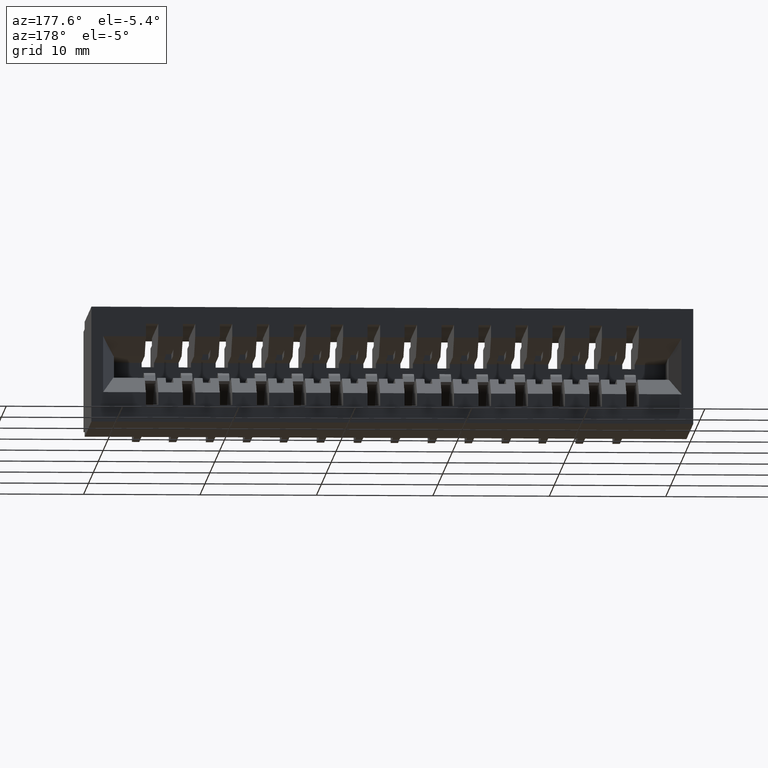
[diagram: clean part render]
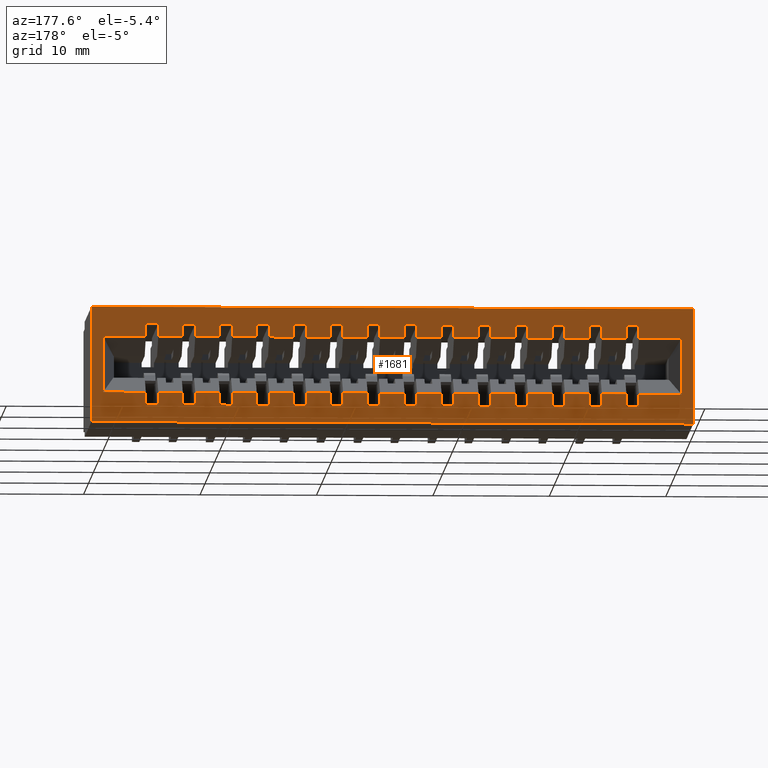
[diagram: same view with one face highlighted and labeled with its STEP entity id]
A machine part, auxiliary view. The second image highlights one B-rep face of the part: STEP entity #1681.
In plain terms, the highlighted planar face has unit normal (0, -1, 0).
Its self-contained STEP definition (entity closure, byte-faithful):
#27 = DIRECTION ( 'NONE',  ( -1.000000000000000000, 0.0000000000000000000, 0.0000000000000000000 ) ) ;
#38 = EDGE_CURVE ( 'NONE', #20331, #19243, #17934, .T. ) ;
#71 = EDGE_CURVE ( 'NONE', #1042, #2799, #19825, .T. ) ;
#84 = EDGE_CURVE ( 'NONE', #3512, #17290, #2547, .T. ) ;
#110 = EDGE_CURVE ( 'NONE', #17803, #18583, #7210, .T. ) ;
#126 = EDGE_CURVE ( 'NONE', #19811, #11554, #24260, .T. ) ;
#157 = LINE ( 'NONE', #21394, #20017 ) ;
#165 = LINE ( 'NONE', #21522, #21310 ) ;
#198 = VECTOR ( 'NONE', #19870, 39.37007874015748143 ) ;
#207 = VERTEX_POINT ( 'NONE', #10785 ) ;
#225 = LINE ( 'NONE', #21447, #10201 ) ;
#229 = EDGE_CURVE ( 'NONE', #14462, #15517, #14597, .T. ) ;
#282 = ORIENTED_EDGE ( 'NONE', *, *, #16743, .F. ) ;
#321 = ORIENTED_EDGE ( 'NONE', *, *, #12318, .T. ) ;
#411 = EDGE_CURVE ( 'NONE', #1943, #17290, #6316, .T. ) ;
#415 = VERTEX_POINT ( 'NONE', #4294 ) ;
#432 = VECTOR ( 'NONE', #5853, 39.37007874015748143 ) ;
#441 = CARTESIAN_POINT ( 'NONE',  ( 1.475999999999999757, 0.6449999999999999067, -5.373951300518784932E-17 ) ) ;
#444 = LINE ( 'NONE', #23716, #14234 ) ;
#469 = CARTESIAN_POINT ( 'NONE',  ( 2.166979362203022230, 0.6449999999999999067, -0.2897500000000000075 ) ) ;
#477 = CARTESIAN_POINT ( 'NONE',  ( 0.4759999999999995346, 0.6449999999999999067, -0.1002500000000000058 ) ) ;
#484 = EDGE_CURVE ( 'NONE', #16224, #546, #6436, .T. ) ;
#487 = DIRECTION ( 'NONE',  ( 2.385081683068867604E-16, 0.0000000000000000000, 1.000000000000000000 ) ) ;
#515 = DIRECTION ( 'NONE',  ( 2.385081683068867604E-16, 0.0000000000000000000, 1.000000000000000000 ) ) ;
#546 = VERTEX_POINT ( 'NONE', #24613 ) ;
#572 = CARTESIAN_POINT ( 'NONE',  ( 0.8509999999999997566, 0.6449999999999999067, -5.373951300518784932E-17 ) ) ;
#576 = CARTESIAN_POINT ( 'NONE',  ( 1.683999999999999497, 0.6449999999999999067, -0.2897500000000000075 ) ) ;
#588 = VERTEX_POINT ( 'NONE', #22465 ) ;
#599 = DIRECTION ( 'NONE',  ( -1.000000000000000000, 0.0000000000000000000, 0.0000000000000000000 ) ) ;
#654 = VERTEX_POINT ( 'NONE', #17485 ) ;
#673 = VERTEX_POINT ( 'NONE', #3503 ) ;
#709 = CARTESIAN_POINT ( 'NONE',  ( 1.058999999999999719, 0.6449999999999999067, -0.05750000000000000250 ) ) ;
#748 = CARTESIAN_POINT ( 'NONE',  ( 2.035000000000000142, 0.6449999999999999067, 0.0000000000000000000 ) ) ;
#765 = VERTEX_POINT ( 'NONE', #12014 ) ;
#776 = VECTOR ( 'NONE', #5903, 39.37007874015748143 ) ;
#802 = CARTESIAN_POINT ( 'NONE',  ( 1.808999999999999719, 0.6449999999999999067, -0.05750000000000000250 ) ) ;
#820 = CARTESIAN_POINT ( 'NONE',  ( 0.6009999999999996456, 0.6449999999999999067, -5.373951300518784932E-17 ) ) ;
#898 = EDGE_CURVE ( 'NONE', #3231, #5701, #7155, .T. ) ;
#946 = DIRECTION ( 'NONE',  ( -1.000000000000000000, 0.0000000000000000000, 0.0000000000000000000 ) ) ;
#959 = LINE ( 'NONE', #10974, #3663 ) ;
#983 = DIRECTION ( 'NONE',  ( 0.0000000000000000000, -1.000000000000000000, 0.0000000000000000000 ) ) ;
#1021 = EDGE_CURVE ( 'NONE', #23395, #1943, #9314, .T. ) ;
#1030 = CARTESIAN_POINT ( 'NONE',  ( 0.6009999999999996456, 0.6449999999999999067, -0.2897499999999999520 ) ) ;
#1042 = VERTEX_POINT ( 'NONE', #1562 ) ;
#1084 = EDGE_CURVE ( 'NONE', #13229, #15936, #19226, .T. ) ;
#1126 = ORIENTED_EDGE ( 'NONE', *, *, #13255, .F. ) ;
#1150 = EDGE_CURVE ( 'NONE', #17248, #5218, #6377, .T. ) ;
#1153 = ORIENTED_EDGE ( 'NONE', *, *, #16964, .T. ) ;
#1175 = VERTEX_POINT ( 'NONE', #15931 ) ;
#1179 = CARTESIAN_POINT ( 'NONE',  ( 1.350999999999999979, 0.6449999999999999067, -0.1002500000000000058 ) ) ;
#1206 = VECTOR ( 'NONE', #17996, 39.37007874015748143 ) ;
#1254 = EDGE_CURVE ( 'NONE', #12512, #8652, #157, .T. ) ;
#1282 = EDGE_CURVE ( 'NONE', #16615, #18333, #22404, .T. ) ;
#1319 = DIRECTION ( 'NONE',  ( 1.000000000000000000, -0.0000000000000000000, -2.307304048702925122E-16 ) ) ;
#1321 = ORIENTED_EDGE ( 'NONE', *, *, #25142, .T. ) ;
#1323 = DIRECTION ( 'NONE',  ( 2.385081683068867604E-16, 0.0000000000000000000, 1.000000000000000000 ) ) ;
#1375 = CARTESIAN_POINT ( 'NONE',  ( 0.8089999999999997193, 0.6449999999999999067, -0.05750000000000000250 ) ) ;
#1424 = CARTESIAN_POINT ( 'NONE',  ( 1.183999999999999719, 0.6449999999999999067, -0.05750000000000000250 ) ) ;
#1448 = CARTESIAN_POINT ( 'NONE',  ( 1.100999999999999757, 0.6449999999999999067, -5.373951300518784932E-17 ) ) ;
#1451 = VERTEX_POINT ( 'NONE', #6059 ) ;
#1519 = ORIENTED_EDGE ( 'NONE', *, *, #24476, .T. ) ;
#1529 = EDGE_CURVE ( 'NONE', #5951, #13750, #1994, .T. ) ;
#1540 = CARTESIAN_POINT ( 'NONE',  ( 1.808999999999999719, 0.6449999999999999067, -0.05750000000000000250 ) ) ;
#1562 = CARTESIAN_POINT ( 'NONE',  ( 1.808999999999999719, 0.6449999999999999067, -0.1002499999999999641 ) ) ;
#1575 = LINE ( 'NONE', #19360, #22292 ) ;
#1595 = CARTESIAN_POINT ( 'NONE',  ( 0.3509999999999995901, 0.6449999999999999067, -0.2897500000000000075 ) ) ;
#1625 = DIRECTION ( 'NONE',  ( 2.385081683068867604E-16, 0.0000000000000000000, 1.000000000000000000 ) ) ;
#1655 = EDGE_CURVE ( 'NONE', #654, #19996, #10398, .T. ) ;
#1681 = ADVANCED_FACE ( 'NONE', ( #8361, #16124 ), #23873, .F. ) ;
#1685 = CARTESIAN_POINT ( 'NONE',  ( 2.166979362203022230, 0.6449999999999999067, -0.2897500000000000075 ) ) ;
#1749 = CARTESIAN_POINT ( 'NONE',  ( 1.433999999999999719, 0.6449999999999999067, -0.1002500000000000058 ) ) ;
#1762 = EDGE_CURVE ( 'NONE', #15774, #4703, #24738, .T. ) ;
#1765 = ORIENTED_EDGE ( 'NONE', *, *, #411, .F. ) ;
#1869 = CARTESIAN_POINT ( 'NONE',  ( 0.2259999999999996734, 0.6449999999999999067, -0.05750000000000000944 ) ) ;
#1905 = ORIENTED_EDGE ( 'NONE', *, *, #1021, .F. ) ;
#1922 = CARTESIAN_POINT ( 'NONE',  ( 0.4339999999999997193, 0.6449999999999999067, -0.1002499999999999364 ) ) ;
#1943 = VERTEX_POINT ( 'NONE', #19510 ) ;
#1994 = LINE ( 'NONE', #5222, #14405 ) ;
#2005 = VECTOR ( 'NONE', #13044, 39.37007874015748143 ) ;
#2011 = CARTESIAN_POINT ( 'NONE',  ( 1.808999999999999719, 0.6449999999999999067, -0.3325000000000000178 ) ) ;
#2033 = LINE ( 'NONE', #3825, #432 ) ;
#2078 = DIRECTION ( 'NONE',  ( 2.385081683068867604E-16, 0.0000000000000000000, 1.000000000000000000 ) ) ;
#2191 = VECTOR ( 'NONE', #22577, 39.37007874015748143 ) ;
#2198 = CARTESIAN_POINT ( 'NONE',  ( 1.183999999999999497, 0.6449999999999999067, -0.3325000000000000178 ) ) ;
#2214 = EDGE_CURVE ( 'NONE', #765, #20088, #959, .T. ) ;
#2235 = VECTOR ( 'NONE', #10667, 39.37007874015748143 ) ;
#2264 = VERTEX_POINT ( 'NONE', #11353 ) ;
#2300 = DIRECTION ( 'NONE',  ( -1.000000000000000000, 0.0000000000000000000, 0.0000000000000000000 ) ) ;
#2303 = CARTESIAN_POINT ( 'NONE',  ( 1.058999999999999719, 0.6449999999999999067, -0.1002499999999999919 ) ) ;
#2309 = CARTESIAN_POINT ( 'NONE',  ( 1.183999999999999497, 0.6449999999999999067, -0.3325000000000000178 ) ) ;
#2319 = ORIENTED_EDGE ( 'NONE', *, *, #21793, .T. ) ;
#2354 = VERTEX_POINT ( 'NONE', #7655 ) ;
#2357 = CARTESIAN_POINT ( 'NONE',  ( 2.166979362203022230, 0.6449999999999999067, -0.1002500000000000058 ) ) ;
#2412 = LINE ( 'NONE', #8256, #17008 ) ;
#2423 = EDGE_CURVE ( 'NONE', #3231, #588, #23561, .T. ) ;
#2447 = CARTESIAN_POINT ( 'NONE',  ( 0.4759999999999995346, 0.6449999999999999067, -0.2897500000000000075 ) ) ;
#2480 = CARTESIAN_POINT ( 'NONE',  ( 2.166979362203022230, 0.6449999999999999067, -0.2897500000000000075 ) ) ;
#2521 = VECTOR ( 'NONE', #7320, 39.37007874015748143 ) ;
#2523 = LINE ( 'NONE', #18030, #5270 ) ;
#2535 = EDGE_CURVE ( 'NONE', #17598, #21650, #165, .T. ) ;
#2545 = CARTESIAN_POINT ( 'NONE',  ( 0.7259999999999997566, 0.6449999999999999067, -5.373951300518784932E-17 ) ) ;
#2547 = LINE ( 'NONE', #16145, #24207 ) ;
#2605 = LINE ( 'NONE', #2480, #8959 ) ;
#2606 = ORIENTED_EDGE ( 'NONE', *, *, #9040, .T. ) ;
#2613 = LINE ( 'NONE', #16099, #8960 ) ;
#2620 = EDGE_CURVE ( 'NONE', #2799, #14621, #2825, .T. ) ;
#2639 = VECTOR ( 'NONE', #16086, 39.37007874015748143 ) ;
#2662 = LINE ( 'NONE', #2545, #23490 ) ;
#2713 = VERTEX_POINT ( 'NONE', #9422 ) ;
#2714 = ORIENTED_EDGE ( 'NONE', *, *, #14026, .T. ) ;
#2732 = LINE ( 'NONE', #709, #23178 ) ;
#2745 = LINE ( 'NONE', #10502, #11538 ) ;
#2748 = VERTEX_POINT ( 'NONE', #15148 ) ;
#2769 = LINE ( 'NONE', #12547, #20759 ) ;
#2774 = ORIENTED_EDGE ( 'NONE', *, *, #13402, .F. ) ;
#2795 = ORIENTED_EDGE ( 'NONE', *, *, #13024, .F. ) ;
#2799 = VERTEX_POINT ( 'NONE', #1540 ) ;
#2801 = VECTOR ( 'NONE', #12612, 39.37007874015748143 ) ;
#2813 = LINE ( 'NONE', #6750, #16042 ) ;
#2825 = LINE ( 'NONE', #802, #14901 ) ;
#2832 = CARTESIAN_POINT ( 'NONE',  ( 1.558999999999999719, 0.6449999999999999067, -0.05750000000000000250 ) ) ;
#2835 = VECTOR ( 'NONE', #4860, 39.37007874015748143 ) ;
#2836 = EDGE_CURVE ( 'NONE', #10793, #21562, #11957, .T. ) ;
#2861 = DIRECTION ( 'NONE',  ( 2.385081683068867604E-16, 0.0000000000000000000, 1.000000000000000000 ) ) ;
#2867 = LINE ( 'NONE', #3110, #2191 ) ;
#2870 = CARTESIAN_POINT ( 'NONE',  ( 1.558999999999999719, 0.6449999999999999067, -0.3325000000000000178 ) ) ;
#2905 = CARTESIAN_POINT ( 'NONE',  ( 2.166979362203022230, 0.6449999999999999067, -0.1002500000000000058 ) ) ;
#2955 = LINE ( 'NONE', #8806, #21474 ) ;
#2994 = VECTOR ( 'NONE', #11476, 39.37007874015748143 ) ;
#3064 = VERTEX_POINT ( 'NONE', #8516 ) ;
#3092 = DIRECTION ( 'NONE',  ( -1.000000000000000000, 0.0000000000000000000, 0.0000000000000000000 ) ) ;
#3110 = CARTESIAN_POINT ( 'NONE',  ( 1.683999999999999497, 0.6449999999999999067, -0.05750000000000000250 ) ) ;
#3120 = CARTESIAN_POINT ( 'NONE',  ( 0.4339999999999996638, 0.6449999999999999067, -0.2897500000000000075 ) ) ;
#3161 = DIRECTION ( 'NONE',  ( 1.000000000000000000, -0.0000000000000000000, -2.307304048702925122E-16 ) ) ;
#3169 = DIRECTION ( 'NONE',  ( 2.385081683068867604E-16, 0.0000000000000000000, 1.000000000000000000 ) ) ;
#3206 = LINE ( 'NONE', #16202, #5501 ) ;
#3207 = VECTOR ( 'NONE', #5186, 39.37007874015748143 ) ;
#3231 = VERTEX_POINT ( 'NONE', #17151 ) ;
#3277 = CARTESIAN_POINT ( 'NONE',  ( 1.558999999999999719, 0.6449999999999999067, -0.05750000000000000250 ) ) ;
#3278 = LINE ( 'NONE', #24767, #22368 ) ;
#3323 = CARTESIAN_POINT ( 'NONE',  ( 0.4339999999999996638, 0.6449999999999999067, -0.05750000000000000250 ) ) ;
#3338 = CARTESIAN_POINT ( 'NONE',  ( 2.166979362203022230, 0.6449999999999999067, -0.1002500000000000058 ) ) ;
#3397 = VERTEX_POINT ( 'NONE', #8952 ) ;
#3406 = VECTOR ( 'NONE', #2078, 39.37007874015748143 ) ;
#3488 = CARTESIAN_POINT ( 'NONE',  ( 0.03959737741648417658, 0.6449999999999999067, -0.1002500000000000058 ) ) ;
#3500 = CARTESIAN_POINT ( 'NONE',  ( 1.308999999999999941, 0.6449999999999999067, -0.05750000000000000250 ) ) ;
#3503 = CARTESIAN_POINT ( 'NONE',  ( 0.8509999999999997566, 0.6449999999999999067, -0.2897499999999999520 ) ) ;
#3507 = EDGE_CURVE ( 'NONE', #1042, #3977, #19241, .T. ) ;
#3512 = VERTEX_POINT ( 'NONE', #19361 ) ;
#3515 = VERTEX_POINT ( 'NONE', #5523 ) ;
#3534 = VERTEX_POINT ( 'NONE', #3488 ) ;
#3548 = CARTESIAN_POINT ( 'NONE',  ( 1.058999999999999719, 0.6449999999999999067, -4.404883600063556642E-17 ) ) ;
#3598 = CARTESIAN_POINT ( 'NONE',  ( 1.100999999999999757, 0.6449999999999999067, -0.1002500000000000058 ) ) ;
#3628 = CARTESIAN_POINT ( 'NONE',  ( 2.035000000000000142, 0.6449999999999999067, 0.0000000000000000000 ) ) ;
#3651 = EDGE_CURVE ( 'NONE', #12492, #5403, #6138, .T. ) ;
#3659 = ORIENTED_EDGE ( 'NONE', *, *, #23984, .F. ) ;
#3663 = VECTOR ( 'NONE', #18743, 39.37007874015748143 ) ;
#3727 = CARTESIAN_POINT ( 'NONE',  ( 0.3509999999999997011, 0.6449999999999999067, -0.05750000000000000944 ) ) ;
#3736 = ORIENTED_EDGE ( 'NONE', *, *, #7025, .F. ) ;
#3757 = CARTESIAN_POINT ( 'NONE',  ( 0.6839999999999996083, 0.6449999999999999067, -0.2897499999999999520 ) ) ;
#3825 = CARTESIAN_POINT ( 'NONE',  ( 0.4339999999999996638, 0.6449999999999999067, -4.404883600063556642E-17 ) ) ;
#3867 = CARTESIAN_POINT ( 'NONE',  ( 0.8509999999999997566, 0.6449999999999999067, -0.05750000000000000944 ) ) ;
#3928 = VERTEX_POINT ( 'NONE', #19742 ) ;
#3970 = CARTESIAN_POINT ( 'NONE',  ( 2.166979362203022230, 0.6449999999999999067, -0.2897500000000000075 ) ) ;
#3977 = VERTEX_POINT ( 'NONE', #20496 ) ;
#4010 = VECTOR ( 'NONE', #23449, 39.37007874015748143 ) ;
#4029 = VECTOR ( 'NONE', #24762, 39.37007874015748143 ) ;
#4060 = VECTOR ( 'NONE', #8919, 39.37007874015748143 ) ;
#4112 = CARTESIAN_POINT ( 'NONE',  ( 0.7259999999999997566, 0.6449999999999999067, -5.373951300518784932E-17 ) ) ;
#4136 = EDGE_LOOP ( 'NONE', ( #20963, #9479, #16011, #20353 ) ) ;
#4207 = CARTESIAN_POINT ( 'NONE',  ( 0.6839999999999997193, 0.6449999999999999067, -0.05750000000000000250 ) ) ;
#4213 = VECTOR ( 'NONE', #23607, 39.37007874015748143 ) ;
#4221 = ORIENTED_EDGE ( 'NONE', *, *, #11694, .T. ) ;
#4225 = VERTEX_POINT ( 'NONE', #23406 ) ;
#4233 = CARTESIAN_POINT ( 'NONE',  ( 0.3089999999999996083, 0.6449999999999999067, -0.1002499999999999364 ) ) ;
#4265 = CARTESIAN_POINT ( 'NONE',  ( 0.4339999999999996638, 0.6449999999999999067, -4.404883600063556642E-17 ) ) ;
#4268 = EDGE_CURVE ( 'NONE', #4962, #22524, #17946, .T. ) ;
#4273 = ORIENTED_EDGE ( 'NONE', *, *, #19954, .T. ) ;
#4294 = CARTESIAN_POINT ( 'NONE',  ( 0.1839999999999996638, 0.6449999999999999067, -0.2897499999999999520 ) ) ;
#4328 = CARTESIAN_POINT ( 'NONE',  ( 1.225999999999999757, 0.6449999999999999067, -5.373951300518784932E-17 ) ) ;
#4346 = VERTEX_POINT ( 'NONE', #14709 ) ;
#4352 = EDGE_CURVE ( 'NONE', #10859, #23677, #20678, .T. ) ;
#4367 = CARTESIAN_POINT ( 'NONE',  ( 0.0000000000000000000, 0.6449999999999999067, 0.0000000000000000000 ) ) ;
#4395 = EDGE_CURVE ( 'NONE', #13376, #2748, #8739, .T. ) ;
#4491 = LINE ( 'NONE', #1424, #2835 ) ;
#4590 = CARTESIAN_POINT ( 'NONE',  ( 0.3089999999999997193, 0.6449999999999999067, -0.05750000000000000250 ) ) ;
#4606 = ORIENTED_EDGE ( 'NONE', *, *, #22916, .F. ) ;
#4702 = VECTOR ( 'NONE', #4763, 39.37007874015748143 ) ;
#4703 = VERTEX_POINT ( 'NONE', #11108 ) ;
#4720 = VECTOR ( 'NONE', #22242, 39.37007874015748143 ) ;
#4733 = VERTEX_POINT ( 'NONE', #4895 ) ;
#4746 = EDGE_CURVE ( 'NONE', #5951, #16098, #12762, .T. ) ;
#4763 = DIRECTION ( 'NONE',  ( 2.385081683068867604E-16, 0.0000000000000000000, 1.000000000000000000 ) ) ;
#4795 = VECTOR ( 'NONE', #16020, 39.37007874015748143 ) ;
#4845 = VECTOR ( 'NONE', #20039, 39.37007874015748143 ) ;
#4860 = DIRECTION ( 'NONE',  ( 1.000000000000000000, -0.0000000000000000000, -2.307304048702925122E-16 ) ) ;
#4886 = EDGE_CURVE ( 'NONE', #22524, #1175, #1575, .T. ) ;
#4895 = CARTESIAN_POINT ( 'NONE',  ( 1.183999999999999719, 0.6449999999999999067, -0.05750000000000000250 ) ) ;
#4959 = CARTESIAN_POINT ( 'NONE',  ( 0.0000000000000000000, 0.6449999999999999067, -0.3900000000000000133 ) ) ;
#4962 = VERTEX_POINT ( 'NONE', #13391 ) ;
#4995 = VERTEX_POINT ( 'NONE', #12373 ) ;
#4998 = EDGE_CURVE ( 'NONE', #11082, #14462, #21527, .T. ) ;
#5010 = CARTESIAN_POINT ( 'NONE',  ( 0.5589999999999996083, 0.6449999999999999067, -0.3325000000000000178 ) ) ;
#5046 = DIRECTION ( 'NONE',  ( -1.000000000000000000, 0.0000000000000000000, 0.0000000000000000000 ) ) ;
#5103 = ORIENTED_EDGE ( 'NONE', *, *, #11404, .F. ) ;
#5186 = DIRECTION ( 'NONE',  ( -1.000000000000000000, 0.0000000000000000000, 0.0000000000000000000 ) ) ;
#5218 = VERTEX_POINT ( 'NONE', #7757 ) ;
#5222 = CARTESIAN_POINT ( 'NONE',  ( 0.9339999999999994973, 0.6449999999999999067, -0.3325000000000000178 ) ) ;
#5265 = CARTESIAN_POINT ( 'NONE',  ( 0.9339999999999996083, 0.6449999999999999067, -4.404883600063556642E-17 ) ) ;
#5270 = VECTOR ( 'NONE', #21841, 39.37007874015748143 ) ;
#5272 = ORIENTED_EDGE ( 'NONE', *, *, #4352, .T. ) ;
#5295 = CARTESIAN_POINT ( 'NONE',  ( 0.6839999999999996083, 0.6449999999999999067, -0.3325000000000000178 ) ) ;
#5345 = LINE ( 'NONE', #18944, #19653 ) ;
#5354 = VECTOR ( 'NONE', #24425, 39.37007874015748143 ) ;
#5357 = DIRECTION ( 'NONE',  ( 1.000000000000000000, -0.0000000000000000000, -2.307304048702925122E-16 ) ) ;
#5379 = CARTESIAN_POINT ( 'NONE',  ( 1.995402622583515972, 0.6449999999999999067, -0.2897500000000000075 ) ) ;
#5403 = VERTEX_POINT ( 'NONE', #5855 ) ;
#5416 = EDGE_CURVE ( 'NONE', #17711, #5403, #19977, .T. ) ;
#5417 = VECTOR ( 'NONE', #10605, 39.37007874015748143 ) ;
#5422 = ORIENTED_EDGE ( 'NONE', *, *, #21449, .T. ) ;
#5436 = CARTESIAN_POINT ( 'NONE',  ( 1.058999999999999719, 0.6449999999999999067, -0.05750000000000000250 ) ) ;
#5448 = DIRECTION ( 'NONE',  ( 1.000000000000000000, -0.0000000000000000000, -2.307304048702925122E-16 ) ) ;
#5501 = VECTOR ( 'NONE', #20390, 39.37007874015748143 ) ;
#5504 = DIRECTION ( 'NONE',  ( 2.385081683068867604E-16, 0.0000000000000000000, 1.000000000000000000 ) ) ;
#5512 = CARTESIAN_POINT ( 'NONE',  ( 0.3089999999999996083, 0.6449999999999999067, -0.3325000000000000178 ) ) ;
#5523 = CARTESIAN_POINT ( 'NONE',  ( 0.8089999999999997193, 0.6449999999999999067, -0.1002499999999999780 ) ) ;
#5533 = EDGE_CURVE ( 'NONE', #6365, #18621, #8887, .T. ) ;
#5561 = DIRECTION ( 'NONE',  ( 1.000000000000000000, -0.0000000000000000000, -2.307304048702925122E-16 ) ) ;
#5571 = ORIENTED_EDGE ( 'NONE', *, *, #8804, .T. ) ;
#5574 = ORIENTED_EDGE ( 'NONE', *, *, #4395, .T. ) ;
#5614 = EDGE_CURVE ( 'NONE', #17015, #22594, #10555, .T. ) ;
#5701 = VERTEX_POINT ( 'NONE', #23128 ) ;
#5725 = CARTESIAN_POINT ( 'NONE',  ( 1.308999999999999941, 0.6449999999999999067, -0.3325000000000000178 ) ) ;
#5732 = ORIENTED_EDGE ( 'NONE', *, *, #8210, .F. ) ;
#5750 = CARTESIAN_POINT ( 'NONE',  ( 1.225999999999999535, 0.6449999999999999067, -0.3325000000000000178 ) ) ;
#5755 = ORIENTED_EDGE ( 'NONE', *, *, #126, .T. ) ;
#5809 = CARTESIAN_POINT ( 'NONE',  ( 1.475999999999999757, 0.6449999999999999067, -0.2897499999999999520 ) ) ;
#5833 = ORIENTED_EDGE ( 'NONE', *, *, #8190, .F. ) ;
#5853 = DIRECTION ( 'NONE',  ( 2.385081683068867604E-16, 0.0000000000000000000, 1.000000000000000000 ) ) ;
#5855 = CARTESIAN_POINT ( 'NONE',  ( 0.7259999999999997566, 0.6449999999999999067, -0.05750000000000000944 ) ) ;
#5885 = DIRECTION ( 'NONE',  ( -1.000000000000000000, 0.0000000000000000000, 0.0000000000000000000 ) ) ;
#5903 = DIRECTION ( 'NONE',  ( 2.385081683068867604E-16, 0.0000000000000000000, 1.000000000000000000 ) ) ;
#5935 = DIRECTION ( 'NONE',  ( -1.000000000000000000, 0.0000000000000000000, 0.0000000000000000000 ) ) ;
#5951 = VERTEX_POINT ( 'NONE', #10525 ) ;
#6059 = CARTESIAN_POINT ( 'NONE',  ( 0.2259999999999996179, 0.6449999999999999067, -0.3325000000000000178 ) ) ;
#6108 = VECTOR ( 'NONE', #18668, 39.37007874015748143 ) ;
#6122 = VECTOR ( 'NONE', #5448, 39.37007874015748143 ) ;
#6124 = VECTOR ( 'NONE', #21422, 39.37007874015748143 ) ;
#6127 = VERTEX_POINT ( 'NONE', #22602 ) ;
#6138 = LINE ( 'NONE', #4112, #10622 ) ;
#6148 = CARTESIAN_POINT ( 'NONE',  ( 1.558999999999999719, 0.6449999999999999067, -4.404883600063556642E-17 ) ) ;
#6162 = ORIENTED_EDGE ( 'NONE', *, *, #9811, .F. ) ;
#6183 = DIRECTION ( 'NONE',  ( 2.385081683068867604E-16, 0.0000000000000000000, 1.000000000000000000 ) ) ;
#6220 = CARTESIAN_POINT ( 'NONE',  ( 1.995402622583515972, 0.6449999999999999067, -0.3900000000000000133 ) ) ;
#6268 = DIRECTION ( 'NONE',  ( 2.385081683068867604E-16, 0.0000000000000000000, 1.000000000000000000 ) ) ;
#6271 = EDGE_CURVE ( 'NONE', #18333, #4346, #20621, .T. ) ;
#6302 = EDGE_CURVE ( 'NONE', #18242, #2264, #2955, .T. ) ;
#6311 = LINE ( 'NONE', #10004, #14825 ) ;
#6316 = LINE ( 'NONE', #10510, #9866 ) ;
#6320 = ORIENTED_EDGE ( 'NONE', *, *, #10769, .F. ) ;
#6361 = VERTEX_POINT ( 'NONE', #2832 ) ;
#6365 = VERTEX_POINT ( 'NONE', #22661 ) ;
#6372 = EDGE_CURVE ( 'NONE', #415, #13004, #9054, .T. ) ;
#6377 = LINE ( 'NONE', #23429, #16003 ) ;
#6430 = DIRECTION ( 'NONE',  ( 2.385081683068867604E-16, 0.0000000000000000000, 1.000000000000000000 ) ) ;
#6436 = LINE ( 'NONE', #15726, #6617 ) ;
#6456 = CARTESIAN_POINT ( 'NONE',  ( 2.166979362203022230, 0.6449999999999999067, -0.1002500000000000058 ) ) ;
#6498 = ORIENTED_EDGE ( 'NONE', *, *, #17489, .T. ) ;
#6582 = EDGE_CURVE ( 'NONE', #2713, #17711, #17957, .T. ) ;
#6617 = VECTOR ( 'NONE', #8474, 39.37007874015748143 ) ;
#6654 = VECTOR ( 'NONE', #3092, 39.37007874015748143 ) ;
#6688 = VECTOR ( 'NONE', #487, 39.37007874015748143 ) ;
#6716 = CARTESIAN_POINT ( 'NONE',  ( 1.600999999999999757, 0.6449999999999999067, -0.05750000000000000944 ) ) ;
#6743 = VERTEX_POINT ( 'NONE', #1030 ) ;
#6750 = CARTESIAN_POINT ( 'NONE',  ( 2.166979362203022230, 0.6449999999999999067, -0.1002500000000000058 ) ) ;
#6857 = VECTOR ( 'NONE', #14534, 39.37007874015748143 ) ;
#6860 = EDGE_CURVE ( 'NONE', #10859, #15813, #22889, .T. ) ;
#6883 = EDGE_CURVE ( 'NONE', #10075, #3534, #23887, .T. ) ;
#6889 = LINE ( 'NONE', #22544, #8563 ) ;
#6963 = LINE ( 'NONE', #9127, #4029 ) ;
#6973 = ORIENTED_EDGE ( 'NONE', *, *, #17039, .T. ) ;
#7000 = VERTEX_POINT ( 'NONE', #14583 ) ;
#7011 = VECTOR ( 'NONE', #5046, 39.37007874015748143 ) ;
#7015 = ORIENTED_EDGE ( 'NONE', *, *, #6883, .T. ) ;
#7025 = EDGE_CURVE ( 'NONE', #8389, #14025, #12549, .T. ) ;
#7087 = LINE ( 'NONE', #2905, #3207 ) ;
#7122 = ORIENTED_EDGE ( 'NONE', *, *, #71, .F. ) ;
#7126 = CARTESIAN_POINT ( 'NONE',  ( 0.2259999999999996456, 0.6449999999999999067, -0.2897499999999999520 ) ) ;
#7155 = LINE ( 'NONE', #22556, #5417 ) ;
#7159 = LINE ( 'NONE', #24332, #22523 ) ;
#7181 = DIRECTION ( 'NONE',  ( 2.385081683068867604E-16, 0.0000000000000000000, 1.000000000000000000 ) ) ;
#7210 = LINE ( 'NONE', #14976, #20539 ) ;
#7212 = LINE ( 'NONE', #22617, #6108 ) ;
#7320 = DIRECTION ( 'NONE',  ( -1.000000000000000000, 0.0000000000000000000, 0.0000000000000000000 ) ) ;
#7332 = CARTESIAN_POINT ( 'NONE',  ( 0.3089999999999997193, 0.6449999999999999067, -0.05750000000000000250 ) ) ;
#7400 = CARTESIAN_POINT ( 'NONE',  ( 0.5589999999999997193, 0.6449999999999999067, -4.404883600063556642E-17 ) ) ;
#7423 = ORIENTED_EDGE ( 'NONE', *, *, #2423, .T. ) ;
#7444 = DIRECTION ( 'NONE',  ( 2.385081683068867604E-16, 0.0000000000000000000, 1.000000000000000000 ) ) ;
#7531 = CARTESIAN_POINT ( 'NONE',  ( 1.808999999999999719, 0.6449999999999999067, -4.404883600063556642E-17 ) ) ;
#7568 = CARTESIAN_POINT ( 'NONE',  ( 0.9339999999999996083, 0.6449999999999999067, -0.05750000000000000250 ) ) ;
#7572 = VERTEX_POINT ( 'NONE', #13532 ) ;
#7590 = VERTEX_POINT ( 'NONE', #9219 ) ;
#7640 = ORIENTED_EDGE ( 'NONE', *, *, #19252, .T. ) ;
#7655 = CARTESIAN_POINT ( 'NONE',  ( 1.850999999999999757, 0.6449999999999999067, -0.3325000000000000178 ) ) ;
#7757 = CARTESIAN_POINT ( 'NONE',  ( 1.558999999999999719, 0.6449999999999999067, -0.2897500000000000075 ) ) ;
#7763 = CARTESIAN_POINT ( 'NONE',  ( 1.350999999999999979, 0.6449999999999999067, -0.3325000000000000178 ) ) ;
#7792 = VECTOR ( 'NONE', #1319, 39.37007874015748143 ) ;
#7867 = CARTESIAN_POINT ( 'NONE',  ( 0.1839999999999996916, 0.6449999999999999067, -4.404883600063556642E-17 ) ) ;
#7946 = CARTESIAN_POINT ( 'NONE',  ( 1.850999999999999757, 0.6449999999999999067, -5.373951300518784932E-17 ) ) ;
#7953 = ORIENTED_EDGE ( 'NONE', *, *, #17767, .T. ) ;
#7959 = LINE ( 'NONE', #15716, #4213 ) ;
#7965 = CARTESIAN_POINT ( 'NONE',  ( 0.5589999999999997193, 0.6449999999999999067, -0.05750000000000000250 ) ) ;
#8053 = EDGE_CURVE ( 'NONE', #17803, #15774, #20330, .T. ) ;
#8125 = VECTOR ( 'NONE', #16765, 39.37007874015748143 ) ;
#8173 = DIRECTION ( 'NONE',  ( 2.385081683068867604E-16, 0.0000000000000000000, 1.000000000000000000 ) ) ;
#8175 = VERTEX_POINT ( 'NONE', #20958 ) ;
#8190 = EDGE_CURVE ( 'NONE', #19811, #10793, #7212, .T. ) ;
#8193 = VECTOR ( 'NONE', #16650, 39.37007874015748143 ) ;
#8210 = EDGE_CURVE ( 'NONE', #9319, #17015, #11163, .T. ) ;
#8255 = EDGE_CURVE ( 'NONE', #17693, #16950, #3278, .T. ) ;
#8256 = CARTESIAN_POINT ( 'NONE',  ( 2.166979362203022230, 0.6449999999999999067, -0.2897500000000000075 ) ) ;
#8281 = DIRECTION ( 'NONE',  ( 2.385081683068867604E-16, 0.0000000000000000000, 1.000000000000000000 ) ) ;
#8294 = VECTOR ( 'NONE', #19829, 39.37007874015748143 ) ;
#8332 = ORIENTED_EDGE ( 'NONE', *, *, #2214, .F. ) ;
#8361 = FACE_OUTER_BOUND ( 'NONE', #4136, .T. ) ;
#8389 = VERTEX_POINT ( 'NONE', #24892 ) ;
#8474 = DIRECTION ( 'NONE',  ( -1.000000000000000000, 0.0000000000000000000, 0.0000000000000000000 ) ) ;
#8493 = CARTESIAN_POINT ( 'NONE',  ( 0.5589999999999997193, 0.6449999999999999067, -4.404883600063556642E-17 ) ) ;
#8516 = CARTESIAN_POINT ( 'NONE',  ( 1.350999999999999979, 0.6449999999999999067, -0.2897499999999999520 ) ) ;
#8533 = VECTOR ( 'NONE', #19237, 39.37007874015748143 ) ;
#8563 = VECTOR ( 'NONE', #18722, 39.37007874015748143 ) ;
#8652 = VERTEX_POINT ( 'NONE', #11754 ) ;
#8665 = ORIENTED_EDGE ( 'NONE', *, *, #15951, .F. ) ;
#8699 = LINE ( 'NONE', #18001, #12644 ) ;
#8739 = LINE ( 'NONE', #5295, #21192 ) ;
#8757 = EDGE_CURVE ( 'NONE', #9319, #17693, #23216, .T. ) ;
#8804 = EDGE_CURVE ( 'NONE', #9169, #8913, #2613, .T. ) ;
#8806 = CARTESIAN_POINT ( 'NONE',  ( 1.058999999999999497, 0.6449999999999999067, -0.3325000000000000178 ) ) ;
#8807 = EDGE_CURVE ( 'NONE', #15813, #1175, #2732, .T. ) ;
#8811 = CARTESIAN_POINT ( 'NONE',  ( 0.2259999999999997289, 0.6449999999999999067, -0.1002500000000000058 ) ) ;
#8850 = DIRECTION ( 'NONE',  ( 0.0000000000000000000, -0.0000000000000000000, -1.000000000000000000 ) ) ;
#8863 = EDGE_CURVE ( 'NONE', #7000, #21038, #21686, .T. ) ;
#8887 = LINE ( 'NONE', #14613, #8193 ) ;
#8913 = VERTEX_POINT ( 'NONE', #14056 ) ;
#8919 = DIRECTION ( 'NONE',  ( 1.000000000000000000, -0.0000000000000000000, -2.307304048702925122E-16 ) ) ;
#8935 = ORIENTED_EDGE ( 'NONE', *, *, #17653, .T. ) ;
#8950 = ORIENTED_EDGE ( 'NONE', *, *, #5533, .F. ) ;
#8952 = CARTESIAN_POINT ( 'NONE',  ( 1.225999999999999757, 0.6449999999999999067, -0.1002500000000000058 ) ) ;
#8955 = ORIENTED_EDGE ( 'NONE', *, *, #20747, .F. ) ;
#8959 = VECTOR ( 'NONE', #14536, 39.37007874015748143 ) ;
#8960 = VECTOR ( 'NONE', #21939, 39.37007874015748143 ) ;
#9022 = ORIENTED_EDGE ( 'NONE', *, *, #23020, .F. ) ;
#9040 = EDGE_CURVE ( 'NONE', #4703, #14621, #11098, .T. ) ;
#9043 = DIRECTION ( 'NONE',  ( 1.000000000000000000, -0.0000000000000000000, -2.307304048702925122E-16 ) ) ;
#9054 = LINE ( 'NONE', #22177, #20672 ) ;
#9127 = CARTESIAN_POINT ( 'NONE',  ( 0.8089999999999997193, 0.6449999999999999067, -0.05750000000000000250 ) ) ;
#9169 = VERTEX_POINT ( 'NONE', #5512 ) ;
#9219 = CARTESIAN_POINT ( 'NONE',  ( 0.1839999999999996361, 0.6449999999999999067, -0.3325000000000000178 ) ) ;
#9220 = CARTESIAN_POINT ( 'NONE',  ( 1.725999999999999535, 0.6449999999999999067, -0.2897499999999999520 ) ) ;
#9225 = CARTESIAN_POINT ( 'NONE',  ( 1.058999999999999719, 0.6449999999999999067, -4.404883600063556642E-17 ) ) ;
#9244 = DIRECTION ( 'NONE',  ( 2.385081683068867604E-16, 0.0000000000000000000, 1.000000000000000000 ) ) ;
#9273 = CARTESIAN_POINT ( 'NONE',  ( 1.683999999999999497, 0.6449999999999999067, -0.1002499999999999364 ) ) ;
#9314 = LINE ( 'NONE', #21270, #2994 ) ;
#9319 = VERTEX_POINT ( 'NONE', #4233 ) ;
#9347 = CARTESIAN_POINT ( 'NONE',  ( 2.166979362203022230, 0.6449999999999999067, -0.1002500000000000058 ) ) ;
#9361 = VERTEX_POINT ( 'NONE', #7126 ) ;
#9365 = CARTESIAN_POINT ( 'NONE',  ( 2.166979362203022230, 0.6449999999999999067, -0.2897500000000000075 ) ) ;
#9398 = ORIENTED_EDGE ( 'NONE', *, *, #3651, .T. ) ;
#9422 = CARTESIAN_POINT ( 'NONE',  ( 0.6839999999999996083, 0.6449999999999999067, -0.1002499999999999641 ) ) ;
#9479 = ORIENTED_EDGE ( 'NONE', *, *, #229, .T. ) ;
#9518 = ORIENTED_EDGE ( 'NONE', *, *, #8255, .T. ) ;
#9529 = ORIENTED_EDGE ( 'NONE', *, *, #20652, .F. ) ;
#9535 = ORIENTED_EDGE ( 'NONE', *, *, #6271, .T. ) ;
#9616 = CARTESIAN_POINT ( 'NONE',  ( 1.995402622583515972, 0.6449999999999999067, -0.1002500000000000058 ) ) ;
#9621 = EDGE_CURVE ( 'NONE', #14025, #14920, #10137, .T. ) ;
#9677 = EDGE_CURVE ( 'NONE', #13324, #6127, #2523, .T. ) ;
#9688 = DIRECTION ( 'NONE',  ( 2.385081683068867604E-16, 0.0000000000000000000, 1.000000000000000000 ) ) ;
#9745 = DIRECTION ( 'NONE',  ( 1.000000000000000000, -0.0000000000000000000, -2.307304048702925122E-16 ) ) ;
#9771 = DIRECTION ( 'NONE',  ( 1.000000000000000000, -0.0000000000000000000, -2.307304048702925122E-16 ) ) ;
#9777 = VECTOR ( 'NONE', #9980, 39.37007874015748143 ) ;
#9811 = EDGE_CURVE ( 'NONE', #3515, #23132, #15082, .T. ) ;
#9818 = DIRECTION ( 'NONE',  ( -1.000000000000000000, 0.0000000000000000000, 0.0000000000000000000 ) ) ;
#9834 = ORIENTED_EDGE ( 'NONE', *, *, #21409, .T. ) ;
#9844 = VERTEX_POINT ( 'NONE', #7568 ) ;
#9866 = VECTOR ( 'NONE', #23620, 39.37007874015748143 ) ;
#9870 = CARTESIAN_POINT ( 'NONE',  ( 1.808999999999999719, 0.6449999999999999067, -0.2897500000000000075 ) ) ;
#9880 = EDGE_CURVE ( 'NONE', #2354, #18583, #21056, .T. ) ;
#9893 = VERTEX_POINT ( 'NONE', #3757 ) ;
#9907 = LINE ( 'NONE', #7867, #776 ) ;
#9965 = CARTESIAN_POINT ( 'NONE',  ( 1.308999999999999941, 0.6449999999999999067, -0.05750000000000000250 ) ) ;
#9980 = DIRECTION ( 'NONE',  ( 2.385081683068867604E-16, 0.0000000000000000000, 1.000000000000000000 ) ) ;
#9998 = LINE ( 'NONE', #469, #24500 ) ;
#10004 = CARTESIAN_POINT ( 'NONE',  ( 0.1839999999999996916, 0.6449999999999999067, -4.404883600063556642E-17 ) ) ;
#10014 = VERTEX_POINT ( 'NONE', #20163 ) ;
#10026 = ORIENTED_EDGE ( 'NONE', *, *, #10577, .F. ) ;
#10029 = DIRECTION ( 'NONE',  ( -1.000000000000000000, -0.0000000000000000000, -0.0000000000000000000 ) ) ;
#10043 = DIRECTION ( 'NONE',  ( 1.000000000000000000, -0.0000000000000000000, -2.307304048702925122E-16 ) ) ;
#10053 = CARTESIAN_POINT ( 'NONE',  ( 0.6839999999999997193, 0.6449999999999999067, -4.404883600063556642E-17 ) ) ;
#10075 = VERTEX_POINT ( 'NONE', #15837 ) ;
#10102 = DIRECTION ( 'NONE',  ( 1.000000000000000000, -0.0000000000000000000, -2.307304048702925122E-16 ) ) ;
#10134 = EDGE_CURVE ( 'NONE', #3515, #12492, #19772, .T. ) ;
#10137 = LINE ( 'NONE', #18273, #13370 ) ;
#10199 = VECTOR ( 'NONE', #23291, 39.37007874015748143 ) ;
#10201 = VECTOR ( 'NONE', #5935, 39.37007874015748143 ) ;
#10213 = ORIENTED_EDGE ( 'NONE', *, *, #20137, .T. ) ;
#10297 = DIRECTION ( 'NONE',  ( 2.385081683068867604E-16, 0.0000000000000000000, 1.000000000000000000 ) ) ;
#10367 = EDGE_CURVE ( 'NONE', #15936, #23730, #23188, .T. ) ;
#10398 = LINE ( 'NONE', #21718, #6688 ) ;
#10407 = ORIENTED_EDGE ( 'NONE', *, *, #898, .F. ) ;
#10418 = CARTESIAN_POINT ( 'NONE',  ( 2.166979362203022230, 0.6449999999999999067, -0.2897500000000000075 ) ) ;
#10424 = CARTESIAN_POINT ( 'NONE',  ( 1.808999999999999719, 0.6449999999999999067, -4.404883600063556642E-17 ) ) ;
#10502 = CARTESIAN_POINT ( 'NONE',  ( 0.9339999999999996083, 0.6449999999999999067, -4.404883600063556642E-17 ) ) ;
#10510 = CARTESIAN_POINT ( 'NONE',  ( 1.433999999999999719, 0.6449999999999999067, -0.05750000000000000250 ) ) ;
#10519 = VERTEX_POINT ( 'NONE', #15804 ) ;
#10525 = CARTESIAN_POINT ( 'NONE',  ( 0.9339999999999994973, 0.6449999999999999067, -0.3325000000000000178 ) ) ;
#10534 = LINE ( 'NONE', #18288, #13737 ) ;
#10555 = LINE ( 'NONE', #4590, #17125 ) ;
#10569 = DIRECTION ( 'NONE',  ( -1.000000000000000000, 0.0000000000000000000, 0.0000000000000000000 ) ) ;
#10577 = EDGE_CURVE ( 'NONE', #4733, #24426, #4491, .T. ) ;
#10590 = DIRECTION ( 'NONE',  ( 1.000000000000000000, -0.0000000000000000000, -2.307304048702925122E-16 ) ) ;
#10605 = DIRECTION ( 'NONE',  ( 2.385081683068867604E-16, 0.0000000000000000000, 1.000000000000000000 ) ) ;
#10622 = VECTOR ( 'NONE', #6268, 39.37007874015748143 ) ;
#10655 = EDGE_CURVE ( 'NONE', #3977, #15207, #14403, .T. ) ;
#10656 = DIRECTION ( 'NONE',  ( 1.000000000000000000, -0.0000000000000000000, -2.307304048702925122E-16 ) ) ;
#10667 = DIRECTION ( 'NONE',  ( 2.385081683068867604E-16, 0.0000000000000000000, 1.000000000000000000 ) ) ;
#10670 = ORIENTED_EDGE ( 'NONE', *, *, #19187, .F. ) ;
#10671 = EDGE_CURVE ( 'NONE', #20249, #4346, #20745, .T. ) ;
#10769 = EDGE_CURVE ( 'NONE', #16224, #20249, #2033, .T. ) ;
#10785 = CARTESIAN_POINT ( 'NONE',  ( 0.9759999999999996456, 0.6449999999999999067, -0.2897499999999999520 ) ) ;
#10793 = VERTEX_POINT ( 'NONE', #22787 ) ;
#10859 = VERTEX_POINT ( 'NONE', #2303 ) ;
#10861 = ORIENTED_EDGE ( 'NONE', *, *, #18099, .F. ) ;
#10937 = LINE ( 'NONE', #15143, #5354 ) ;
#10960 = LINE ( 'NONE', #1685, #15796 ) ;
#10969 = ORIENTED_EDGE ( 'NONE', *, *, #22630, .T. ) ;
#10974 = CARTESIAN_POINT ( 'NONE',  ( 1.683999999999999497, 0.6449999999999999067, -4.404883600063556642E-17 ) ) ;
#10979 = ORIENTED_EDGE ( 'NONE', *, *, #6302, .T. ) ;
#10986 = ORIENTED_EDGE ( 'NONE', *, *, #20074, .F. ) ;
#11009 = ORIENTED_EDGE ( 'NONE', *, *, #15880, .F. ) ;
#11082 = VERTEX_POINT ( 'NONE', #4959 ) ;
#11090 = ORIENTED_EDGE ( 'NONE', *, *, #9677, .F. ) ;
#11098 = LINE ( 'NONE', #14429, #4702 ) ;
#11108 = CARTESIAN_POINT ( 'NONE',  ( 1.850999999999999757, 0.6449999999999999067, -0.1002500000000000058 ) ) ;
#11138 = CARTESIAN_POINT ( 'NONE',  ( 2.166979362203022230, 0.6449999999999999067, -0.1002500000000000058 ) ) ;
#11163 = LINE ( 'NONE', #22872, #8125 ) ;
#11223 = LINE ( 'NONE', #11597, #17631 ) ;
#11274 = LINE ( 'NONE', #22994, #14012 ) ;
#11279 = EDGE_CURVE ( 'NONE', #9844, #22376, #2769, .T. ) ;
#11353 = CARTESIAN_POINT ( 'NONE',  ( 1.100999999999999535, 0.6449999999999999067, -0.3325000000000000178 ) ) ;
#11363 = ORIENTED_EDGE ( 'NONE', *, *, #24147, .F. ) ;
#11368 = EDGE_CURVE ( 'NONE', #18621, #21650, #13054, .T. ) ;
#11404 = EDGE_CURVE ( 'NONE', #19108, #207, #23101, .T. ) ;
#11469 = VECTOR ( 'NONE', #22525, 39.37007874015748143 ) ;
#11471 = CARTESIAN_POINT ( 'NONE',  ( 0.6839999999999997193, 0.6449999999999999067, -4.404883600063556642E-17 ) ) ;
#11476 = DIRECTION ( 'NONE',  ( 2.385081683068867604E-16, 0.0000000000000000000, 1.000000000000000000 ) ) ;
#11483 = VECTOR ( 'NONE', #17324, 39.37007874015748143 ) ;
#11494 = ORIENTED_EDGE ( 'NONE', *, *, #22059, .T. ) ;
#11538 = VECTOR ( 'NONE', #18256, 39.37007874015748143 ) ;
#11554 = VERTEX_POINT ( 'NONE', #16323 ) ;
#11562 = CARTESIAN_POINT ( 'NONE',  ( 1.558999999999999719, 0.6449999999999999067, -0.1002499999999999364 ) ) ;
#11597 = CARTESIAN_POINT ( 'NONE',  ( 2.166979362203022230, 0.6449999999999999067, -0.2897500000000000075 ) ) ;
#11605 = VECTOR ( 'NONE', #23780, 39.37007874015748143 ) ;
#11609 = LINE ( 'NONE', #2198, #11883 ) ;
#11694 = EDGE_CURVE ( 'NONE', #3928, #10014, #6889, .T. ) ;
#11700 = EDGE_CURVE ( 'NONE', #546, #22594, #17059, .T. ) ;
#11713 = ORIENTED_EDGE ( 'NONE', *, *, #1150, .F. ) ;
#11749 = EDGE_CURVE ( 'NONE', #7572, #16950, #15401, .T. ) ;
#11754 = CARTESIAN_POINT ( 'NONE',  ( 1.100999999999999535, 0.6449999999999999067, -0.2897499999999999520 ) ) ;
#11794 = VERTEX_POINT ( 'NONE', #7763 ) ;
#11839 = EDGE_LOOP ( 'NONE', ( #23097, #16109, #24895, #2606, #14804, #7122, #22251, #17563, #25033, #11090, #12150, #24094, #9529, #1126, #23434, #12881, #1765, #1905, #7953, #23351, #16920, #8950, #16721, #13731, #10026, #21946, #22004, #15142, #12791, #14676, #5272, #12336, #22934, #2795, #1519, #17185, #10861, #6162, #20101, #9398, #24209, #15460, #4273, #17922, #23001, #9022, #17305, #9535, #14738, #6320, #20285, #12976, #21716, #5732, #18188, #9518, #13964, #10670, #7015, #1153, #14459, #21225, #17223, #14845, #16339, #2774, #5571, #8935, #10986, #22080, #11494, #2319, #17584, #3736, #9834, #18990, #282, #4606, #5574, #7640, #18468, #5833, #5755, #16525, #3659, #25023, #22886, #1321, #5103, #17020, #10979, #5422, #16139, #20089, #10969, #10213, #12254, #11009, #23439, #6973, #11363, #10407, #7423, #6498, #8665, #11713, #2714, #4221, #8955, #8332, #12173, #17851, #19410, #23249, #321, #17283 ) ) ;
#11883 = VECTOR ( 'NONE', #17718, 39.37007874015748143 ) ;
#11948 = VERTEX_POINT ( 'NONE', #2309 ) ;
#11957 = LINE ( 'NONE', #16039, #14670 ) ;
#11962 = VECTOR ( 'NONE', #9745, 39.37007874015748143 ) ;
#11963 = DIRECTION ( 'NONE',  ( 1.000000000000000000, -0.0000000000000000000, -2.307304048702925122E-16 ) ) ;
#12014 = CARTESIAN_POINT ( 'NONE',  ( 1.683999999999999497, 0.6449999999999999067, -0.3325000000000000178 ) ) ;
#12130 = CARTESIAN_POINT ( 'NONE',  ( 2.166979362203022230, 0.6449999999999999067, -0.1002500000000000058 ) ) ;
#12150 = ORIENTED_EDGE ( 'NONE', *, *, #18830, .T. ) ;
#12173 = ORIENTED_EDGE ( 'NONE', *, *, #14636, .T. ) ;
#12193 = DIRECTION ( 'NONE',  ( -1.000000000000000000, 0.0000000000000000000, 0.0000000000000000000 ) ) ;
#12254 = ORIENTED_EDGE ( 'NONE', *, *, #17739, .F. ) ;
#12318 = EDGE_CURVE ( 'NONE', #13229, #2354, #19424, .T. ) ;
#12336 = ORIENTED_EDGE ( 'NONE', *, *, #14607, .T. ) ;
#12373 = CARTESIAN_POINT ( 'NONE',  ( 1.725999999999999535, 0.6449999999999999067, -0.3325000000000000178 ) ) ;
#12433 = EDGE_CURVE ( 'NONE', #23876, #11082, #16015, .T. ) ;
#12492 = VERTEX_POINT ( 'NONE', #12801 ) ;
#12498 = CARTESIAN_POINT ( 'NONE',  ( 1.850999999999999757, 0.6449999999999999067, -0.05750000000000000944 ) ) ;
#12512 = VERTEX_POINT ( 'NONE', #18783 ) ;
#12547 = CARTESIAN_POINT ( 'NONE',  ( 0.9339999999999996083, 0.6449999999999999067, -0.05750000000000000250 ) ) ;
#12549 = LINE ( 'NONE', #8493, #16223 ) ;
#12612 = DIRECTION ( 'NONE',  ( 2.385081683068867604E-16, 0.0000000000000000000, 1.000000000000000000 ) ) ;
#12622 = LINE ( 'NONE', #16331, #23790 ) ;
#12644 = VECTOR ( 'NONE', #16338, 39.37007874015748143 ) ;
#12710 = VECTOR ( 'NONE', #5504, 39.37007874015748143 ) ;
#12762 = LINE ( 'NONE', #5265, #14560 ) ;
#12791 = ORIENTED_EDGE ( 'NONE', *, *, #8807, .F. ) ;
#12801 = CARTESIAN_POINT ( 'NONE',  ( 0.7259999999999998677, 0.6449999999999999067, -0.1002500000000000058 ) ) ;
#12811 = DIRECTION ( 'NONE',  ( 1.000000000000000000, 0.0000000000000000000, 0.0000000000000000000 ) ) ;
#12863 = CARTESIAN_POINT ( 'NONE',  ( 0.3509999999999997011, 0.6449999999999999067, -5.373951300518784932E-17 ) ) ;
#12881 = ORIENTED_EDGE ( 'NONE', *, *, #84, .T. ) ;
#12949 = VECTOR ( 'NONE', #19055, 39.37007874015748143 ) ;
#12964 = EDGE_CURVE ( 'NONE', #6127, #15207, #2867, .T. ) ;
#12976 = ORIENTED_EDGE ( 'NONE', *, *, #11700, .T. ) ;
#12999 = VECTOR ( 'NONE', #22186, 39.37007874015748143 ) ;
#13004 = VERTEX_POINT ( 'NONE', #20417 ) ;
#13024 = EDGE_CURVE ( 'NONE', #21127, #9844, #2745, .T. ) ;
#13044 = DIRECTION ( 'NONE',  ( 2.385081683068867604E-16, 0.0000000000000000000, 1.000000000000000000 ) ) ;
#13054 = LINE ( 'NONE', #9965, #14268 ) ;
#13137 = LINE ( 'NONE', #1448, #22422 ) ;
#13229 = VERTEX_POINT ( 'NONE', #15688 ) ;
#13249 = CARTESIAN_POINT ( 'NONE',  ( 1.225999999999999757, 0.6449999999999999067, -0.2897499999999999520 ) ) ;
#13255 = EDGE_CURVE ( 'NONE', #16637, #6361, #21798, .T. ) ;
#13257 = DIRECTION ( 'NONE',  ( 2.385081683068867604E-16, 0.0000000000000000000, 1.000000000000000000 ) ) ;
#13299 = DIRECTION ( 'NONE',  ( -1.000000000000000000, 0.0000000000000000000, 0.0000000000000000000 ) ) ;
#13308 = LINE ( 'NONE', #21441, #19412 ) ;
#13324 = VERTEX_POINT ( 'NONE', #9273 ) ;
#13370 = VECTOR ( 'NONE', #16125, 39.37007874015748143 ) ;
#13371 = VECTOR ( 'NONE', #21603, 39.37007874015748143 ) ;
#13376 = VERTEX_POINT ( 'NONE', #22055 ) ;
#13391 = CARTESIAN_POINT ( 'NONE',  ( 1.183999999999999719, 0.6449999999999999067, -0.1002499999999999919 ) ) ;
#13402 = EDGE_CURVE ( 'NONE', #9169, #16460, #5345, .T. ) ;
#13417 = LINE ( 'NONE', #3628, #21731 ) ;
#13437 = LINE ( 'NONE', #21206, #11962 ) ;
#13446 = DIRECTION ( 'NONE',  ( 2.385081683068867604E-16, 0.0000000000000000000, 1.000000000000000000 ) ) ;
#13468 = VECTOR ( 'NONE', #2300, 39.37007874015748143 ) ;
#13495 = VECTOR ( 'NONE', #10043, 39.37007874015748143 ) ;
#13532 = CARTESIAN_POINT ( 'NONE',  ( 0.1839999999999996916, 0.6449999999999999067, -0.05750000000000000250 ) ) ;
#13603 = VECTOR ( 'NONE', #14657, 39.37007874015748143 ) ;
#13731 = ORIENTED_EDGE ( 'NONE', *, *, #24670, .T. ) ;
#13737 = VECTOR ( 'NONE', #10656, 39.37007874015748143 ) ;
#13750 = VERTEX_POINT ( 'NONE', #14725 ) ;
#13840 = VECTOR ( 'NONE', #13299, 39.37007874015748143 ) ;
#13908 = DIRECTION ( 'NONE',  ( 1.000000000000000000, -0.0000000000000000000, -2.307304048702925122E-16 ) ) ;
#13915 = DIRECTION ( 'NONE',  ( -1.000000000000000000, 0.0000000000000000000, 0.0000000000000000000 ) ) ;
#13947 = EDGE_CURVE ( 'NONE', #21930, #11794, #13437, .T. ) ;
#13964 = ORIENTED_EDGE ( 'NONE', *, *, #11749, .F. ) ;
#14001 = VERTEX_POINT ( 'NONE', #17263 ) ;
#14012 = VECTOR ( 'NONE', #5561, 39.37007874015748143 ) ;
#14025 = VERTEX_POINT ( 'NONE', #15229 ) ;
#14026 = EDGE_CURVE ( 'NONE', #17248, #3928, #11274, .T. ) ;
#14028 = CARTESIAN_POINT ( 'NONE',  ( 1.433999999999999719, 0.6449999999999999067, -0.3325000000000000178 ) ) ;
#14056 = CARTESIAN_POINT ( 'NONE',  ( 0.3509999999999995901, 0.6449999999999999067, -0.3325000000000000178 ) ) ;
#14136 = EDGE_CURVE ( 'NONE', #7590, #415, #6311, .T. ) ;
#14234 = VECTOR ( 'NONE', #14300, 39.37007874015748143 ) ;
#14267 = CARTESIAN_POINT ( 'NONE',  ( 1.225999999999999757, 0.6449999999999999067, -0.05750000000000000944 ) ) ;
#14268 = VECTOR ( 'NONE', #13908, 39.37007874015748143 ) ;
#14297 = LINE ( 'NONE', #12863, #6857 ) ;
#14300 = DIRECTION ( 'NONE',  ( 2.385081683068867604E-16, 0.0000000000000000000, 1.000000000000000000 ) ) ;
#14356 = DIRECTION ( 'NONE',  ( 2.385081683068867604E-16, 0.0000000000000000000, 1.000000000000000000 ) ) ;
#14403 = LINE ( 'NONE', #24191, #14610 ) ;
#14405 = VECTOR ( 'NONE', #5357, 39.37007874015748143 ) ;
#14429 = CARTESIAN_POINT ( 'NONE',  ( 1.850999999999999757, 0.6449999999999999067, -5.373951300518784932E-17 ) ) ;
#14449 = LINE ( 'NONE', #24609, #19885 ) ;
#14459 = ORIENTED_EDGE ( 'NONE', *, *, #6372, .F. ) ;
#14462 = VERTEX_POINT ( 'NONE', #18111 ) ;
#14472 = EDGE_CURVE ( 'NONE', #11554, #673, #21541, .T. ) ;
#14534 = DIRECTION ( 'NONE',  ( 2.385081683068867604E-16, 0.0000000000000000000, 1.000000000000000000 ) ) ;
#14536 = DIRECTION ( 'NONE',  ( -1.000000000000000000, 0.0000000000000000000, 0.0000000000000000000 ) ) ;
#14560 = VECTOR ( 'NONE', #2861, 39.37007874015748143 ) ;
#14574 = CARTESIAN_POINT ( 'NONE',  ( 0.8089999999999997193, 0.6449999999999999067, -4.404883600063556642E-17 ) ) ;
#14583 = CARTESIAN_POINT ( 'NONE',  ( 0.4339999999999996638, 0.6449999999999999067, -0.3325000000000000178 ) ) ;
#14588 = EDGE_CURVE ( 'NONE', #6365, #3397, #12622, .T. ) ;
#14597 = LINE ( 'NONE', #22369, #23803 ) ;
#14607 = EDGE_CURVE ( 'NONE', #23677, #22376, #3206, .T. ) ;
#14610 = VECTOR ( 'NONE', #14893, 39.37007874015748143 ) ;
#14613 = CARTESIAN_POINT ( 'NONE',  ( 1.308999999999999941, 0.6449999999999999067, -4.404883600063556642E-17 ) ) ;
#14621 = VERTEX_POINT ( 'NONE', #12498 ) ;
#14636 = EDGE_CURVE ( 'NONE', #765, #4995, #22550, .T. ) ;
#14655 = VECTOR ( 'NONE', #13446, 39.37007874015748143 ) ;
#14657 = DIRECTION ( 'NONE',  ( 1.000000000000000000, -0.0000000000000000000, -2.307304048702925122E-16 ) ) ;
#14660 = CARTESIAN_POINT ( 'NONE',  ( 0.4339999999999996638, 0.6449999999999999067, -0.05750000000000000250 ) ) ;
#14670 = VECTOR ( 'NONE', #21627, 39.37007874015748143 ) ;
#14676 = ORIENTED_EDGE ( 'NONE', *, *, #6860, .F. ) ;
#14709 = CARTESIAN_POINT ( 'NONE',  ( 0.4759999999999996456, 0.6449999999999999067, -0.05750000000000000944 ) ) ;
#14725 = CARTESIAN_POINT ( 'NONE',  ( 0.9759999999999995346, 0.6449999999999999067, -0.3325000000000000178 ) ) ;
#14738 = ORIENTED_EDGE ( 'NONE', *, *, #10671, .F. ) ;
#14790 = CARTESIAN_POINT ( 'NONE',  ( 2.166979362203022230, 0.6449999999999999067, -0.2897500000000000075 ) ) ;
#14804 = ORIENTED_EDGE ( 'NONE', *, *, #2620, .F. ) ;
#14825 = VECTOR ( 'NONE', #6183, 39.37007874015748143 ) ;
#14845 = ORIENTED_EDGE ( 'NONE', *, *, #16536, .T. ) ;
#14893 = DIRECTION ( 'NONE',  ( 2.385081683068867604E-16, 0.0000000000000000000, 1.000000000000000000 ) ) ;
#14901 = VECTOR ( 'NONE', #9043, 39.37007874015748143 ) ;
#14908 = CARTESIAN_POINT ( 'NONE',  ( 0.6839999999999997193, 0.6449999999999999067, -0.05750000000000000250 ) ) ;
#14920 = VERTEX_POINT ( 'NONE', #2447 ) ;
#14973 = VECTOR ( 'NONE', #9244, 39.37007874015748143 ) ;
#14976 = CARTESIAN_POINT ( 'NONE',  ( 2.166979362203022230, 0.6449999999999999067, -0.2897500000000000075 ) ) ;
#15082 = LINE ( 'NONE', #14574, #2005 ) ;
#15106 = CARTESIAN_POINT ( 'NONE',  ( 1.058999999999999497, 0.6449999999999999067, -0.3325000000000000178 ) ) ;
#15111 = LINE ( 'NONE', #15236, #14655 ) ;
#15142 = ORIENTED_EDGE ( 'NONE', *, *, #4886, .T. ) ;
#15143 = CARTESIAN_POINT ( 'NONE',  ( 0.4759999999999996456, 0.6449999999999999067, -5.373951300518784932E-17 ) ) ;
#15148 = CARTESIAN_POINT ( 'NONE',  ( 0.7259999999999995346, 0.6449999999999999067, -0.3325000000000000178 ) ) ;
#15207 = VERTEX_POINT ( 'NONE', #18687 ) ;
#15227 = LINE ( 'NONE', #25123, #22288 ) ;
#15229 = CARTESIAN_POINT ( 'NONE',  ( 0.5589999999999997193, 0.6449999999999999067, -0.2897499999999999520 ) ) ;
#15236 = CARTESIAN_POINT ( 'NONE',  ( 1.725999999999999535, 0.6449999999999999067, -5.373951300518784932E-17 ) ) ;
#15351 = LINE ( 'NONE', #3277, #6122 ) ;
#15401 = LINE ( 'NONE', #23042, #10199 ) ;
#15441 = LINE ( 'NONE', #15820, #23987 ) ;
#15460 = ORIENTED_EDGE ( 'NONE', *, *, #6582, .F. ) ;
#15517 = VERTEX_POINT ( 'NONE', #748 ) ;
#15571 = CARTESIAN_POINT ( 'NONE',  ( 0.9339999999999996083, 0.6449999999999999067, -0.1002499999999999780 ) ) ;
#15688 = CARTESIAN_POINT ( 'NONE',  ( 1.808999999999999719, 0.6449999999999999067, -0.3325000000000000178 ) ) ;
#15716 = CARTESIAN_POINT ( 'NONE',  ( 1.183999999999999719, 0.6449999999999999067, -4.404883600063556642E-17 ) ) ;
#15726 = CARTESIAN_POINT ( 'NONE',  ( 2.166979362203022230, 0.6449999999999999067, -0.1002500000000000058 ) ) ;
#15752 = CARTESIAN_POINT ( 'NONE',  ( 0.6009999999999996456, 0.6449999999999999067, -0.05750000000000000944 ) ) ;
#15774 = VERTEX_POINT ( 'NONE', #9616 ) ;
#15796 = VECTOR ( 'NONE', #20885, 39.37007874015748143 ) ;
#15804 = CARTESIAN_POINT ( 'NONE',  ( 1.308999999999999941, 0.6449999999999999067, -0.2897499999999999520 ) ) ;
#15813 = VERTEX_POINT ( 'NONE', #5436 ) ;
#15820 = CARTESIAN_POINT ( 'NONE',  ( 2.166979362203022230, 0.6449999999999999067, -0.1002500000000000058 ) ) ;
#15837 = CARTESIAN_POINT ( 'NONE',  ( 0.1839999999999996916, 0.6449999999999999067, -0.1002500000000000335 ) ) ;
#15880 = EDGE_CURVE ( 'NONE', #21930, #10519, #19784, .T. ) ;
#15931 = CARTESIAN_POINT ( 'NONE',  ( 1.100999999999999757, 0.6449999999999999067, -0.05750000000000000944 ) ) ;
#15936 = VERTEX_POINT ( 'NONE', #9870 ) ;
#15951 = EDGE_CURVE ( 'NONE', #5218, #23262, #9998, .T. ) ;
#15963 = EDGE_CURVE ( 'NONE', #11948, #12512, #7959, .T. ) ;
#15980 = CARTESIAN_POINT ( 'NONE',  ( 1.308999999999999941, 0.6449999999999999067, -4.404883600063556642E-17 ) ) ;
#16003 = VECTOR ( 'NONE', #18088, 39.37007874015748143 ) ;
#16011 = ORIENTED_EDGE ( 'NONE', *, *, #24943, .T. ) ;
#16015 = LINE ( 'NONE', #23507, #16325 ) ;
#16020 = DIRECTION ( 'NONE',  ( -1.000000000000000000, 0.0000000000000000000, 0.0000000000000000000 ) ) ;
#16039 = CARTESIAN_POINT ( 'NONE',  ( 2.166979362203022230, 0.6449999999999999067, -0.2897500000000000075 ) ) ;
#16042 = VECTOR ( 'NONE', #10569, 39.37007874015748143 ) ;
#16073 = DIRECTION ( 'NONE',  ( -0.0000000000000000000, -0.0000000000000000000, 1.000000000000000000 ) ) ;
#16086 = DIRECTION ( 'NONE',  ( 2.385081683068867604E-16, 0.0000000000000000000, 1.000000000000000000 ) ) ;
#16098 = VERTEX_POINT ( 'NONE', #18477 ) ;
#16099 = CARTESIAN_POINT ( 'NONE',  ( 0.3089999999999996083, 0.6449999999999999067, -0.3325000000000000178 ) ) ;
#16109 = ORIENTED_EDGE ( 'NONE', *, *, #8053, .T. ) ;
#16124 = FACE_BOUND ( 'NONE', #11839, .T. ) ;
#16125 = DIRECTION ( 'NONE',  ( -1.000000000000000000, 0.0000000000000000000, 0.0000000000000000000 ) ) ;
#16139 = ORIENTED_EDGE ( 'NONE', *, *, #1254, .F. ) ;
#16145 = CARTESIAN_POINT ( 'NONE',  ( 1.475999999999999757, 0.6449999999999999067, -5.373951300518784932E-17 ) ) ;
#16202 = CARTESIAN_POINT ( 'NONE',  ( 0.9759999999999996456, 0.6449999999999999067, -5.373951300518784932E-17 ) ) ;
#16209 = CARTESIAN_POINT ( 'NONE',  ( 2.035000000000000142, 0.6449999999999999067, -0.3900000000000000133 ) ) ;
#16223 = VECTOR ( 'NONE', #18533, 39.37007874015748143 ) ;
#16224 = VERTEX_POINT ( 'NONE', #1922 ) ;
#16271 = DIRECTION ( 'NONE',  ( 0.0000000000000000000, 0.0000000000000000000, 1.000000000000000000 ) ) ;
#16306 = CARTESIAN_POINT ( 'NONE',  ( 2.166979362203022230, 0.6449999999999999067, -0.1002500000000000058 ) ) ;
#16318 = VECTOR ( 'NONE', #5885, 39.37007874015748143 ) ;
#16323 = CARTESIAN_POINT ( 'NONE',  ( 0.8509999999999996456, 0.6449999999999999067, -0.3325000000000000178 ) ) ;
#16325 = VECTOR ( 'NONE', #10029, 39.37007874015748143 ) ;
#16331 = CARTESIAN_POINT ( 'NONE',  ( 2.166979362203022230, 0.6449999999999999067, -0.1002500000000000058 ) ) ;
#16338 = DIRECTION ( 'NONE',  ( 1.000000000000000000, -0.0000000000000000000, -2.307304048702925122E-16 ) ) ;
#16339 = ORIENTED_EDGE ( 'NONE', *, *, #19142, .F. ) ;
#16460 = VERTEX_POINT ( 'NONE', #22395 ) ;
#16525 = ORIENTED_EDGE ( 'NONE', *, *, #14472, .T. ) ;
#16536 = EDGE_CURVE ( 'NONE', #1451, #9361, #22516, .T. ) ;
#16615 = VERTEX_POINT ( 'NONE', #20978 ) ;
#16637 = VERTEX_POINT ( 'NONE', #11562 ) ;
#16650 = DIRECTION ( 'NONE',  ( 2.385081683068867604E-16, 0.0000000000000000000, 1.000000000000000000 ) ) ;
#16721 = ORIENTED_EDGE ( 'NONE', *, *, #14588, .T. ) ;
#16743 = EDGE_CURVE ( 'NONE', #9893, #6743, #20201, .T. ) ;
#16765 = DIRECTION ( 'NONE',  ( 2.385081683068867604E-16, 0.0000000000000000000, 1.000000000000000000 ) ) ;
#16813 = DIRECTION ( 'NONE',  ( -1.000000000000000000, 0.0000000000000000000, 0.0000000000000000000 ) ) ;
#16836 = EDGE_CURVE ( 'NONE', #19455, #22919, #10534, .T. ) ;
#16920 = ORIENTED_EDGE ( 'NONE', *, *, #11368, .F. ) ;
#16950 = VERTEX_POINT ( 'NONE', #1869 ) ;
#16964 = EDGE_CURVE ( 'NONE', #3534, #13004, #15227, .T. ) ;
#17008 = VECTOR ( 'NONE', #12193, 39.37007874015748143 ) ;
#17015 = VERTEX_POINT ( 'NONE', #7332 ) ;
#17020 = ORIENTED_EDGE ( 'NONE', *, *, #24774, .F. ) ;
#17039 = EDGE_CURVE ( 'NONE', #11794, #3064, #13308, .T. ) ;
#17059 = LINE ( 'NONE', #24686, #22783 ) ;
#17068 = LINE ( 'NONE', #7400, #12710 ) ;
#17125 = VECTOR ( 'NONE', #3161, 39.37007874015748143 ) ;
#17151 = CARTESIAN_POINT ( 'NONE',  ( 1.433999999999999719, 0.6449999999999999067, -0.3325000000000000178 ) ) ;
#17185 = ORIENTED_EDGE ( 'NONE', *, *, #1655, .T. ) ;
#17198 = LINE ( 'NONE', #3338, #19430 ) ;
#17223 = ORIENTED_EDGE ( 'NONE', *, *, #21289, .T. ) ;
#17248 = VERTEX_POINT ( 'NONE', #2870 ) ;
#17263 = CARTESIAN_POINT ( 'NONE',  ( 0.4759999999999996456, 0.6449999999999999067, -0.3325000000000000178 ) ) ;
#17283 = ORIENTED_EDGE ( 'NONE', *, *, #9880, .T. ) ;
#17290 = VERTEX_POINT ( 'NONE', #22581 ) ;
#17305 = ORIENTED_EDGE ( 'NONE', *, *, #1282, .T. ) ;
#17324 = DIRECTION ( 'NONE',  ( 2.385081683068867604E-16, 0.0000000000000000000, 1.000000000000000000 ) ) ;
#17485 = CARTESIAN_POINT ( 'NONE',  ( 0.8509999999999997566, 0.6449999999999999067, -0.1002500000000000058 ) ) ;
#17489 = EDGE_CURVE ( 'NONE', #588, #23262, #21540, .T. ) ;
#17563 = ORIENTED_EDGE ( 'NONE', *, *, #10655, .T. ) ;
#17584 = ORIENTED_EDGE ( 'NONE', *, *, #9621, .F. ) ;
#17598 = VERTEX_POINT ( 'NONE', #1179 ) ;
#17621 = DIRECTION ( 'NONE',  ( 0.0000000000000000000, 0.0000000000000000000, -1.000000000000000000 ) ) ;
#17631 = VECTOR ( 'NONE', #27, 39.37007874015748143 ) ;
#17653 = EDGE_CURVE ( 'NONE', #8913, #21032, #14297, .T. ) ;
#17693 = VERTEX_POINT ( 'NONE', #8811 ) ;
#17711 = VERTEX_POINT ( 'NONE', #14908 ) ;
#17718 = DIRECTION ( 'NONE',  ( 1.000000000000000000, -0.0000000000000000000, -2.307304048702925122E-16 ) ) ;
#17739 = EDGE_CURVE ( 'NONE', #10519, #23025, #10960, .T. ) ;
#17767 = EDGE_CURVE ( 'NONE', #23395, #17598, #17198, .T. ) ;
#17803 = VERTEX_POINT ( 'NONE', #5379 ) ;
#17851 = ORIENTED_EDGE ( 'NONE', *, *, #20613, .T. ) ;
#17864 = LINE ( 'NONE', #12130, #1206 ) ;
#17922 = ORIENTED_EDGE ( 'NONE', *, *, #20057, .T. ) ;
#17934 = LINE ( 'NONE', #24149, #23392 ) ;
#17946 = LINE ( 'NONE', #22224, #13468 ) ;
#17957 = LINE ( 'NONE', #10053, #22695 ) ;
#17996 = DIRECTION ( 'NONE',  ( -1.000000000000000000, 0.0000000000000000000, 0.0000000000000000000 ) ) ;
#18001 = CARTESIAN_POINT ( 'NONE',  ( 0.1839999999999996361, 0.6449999999999999067, -0.3325000000000000178 ) ) ;
#18030 = CARTESIAN_POINT ( 'NONE',  ( 1.683999999999999497, 0.6449999999999999067, -4.404883600063556642E-17 ) ) ;
#18071 = EDGE_CURVE ( 'NONE', #16637, #3512, #7087, .T. ) ;
#18088 = DIRECTION ( 'NONE',  ( 2.385081683068867604E-16, 0.0000000000000000000, 1.000000000000000000 ) ) ;
#18099 = EDGE_CURVE ( 'NONE', #23132, #19996, #6963, .T. ) ;
#18111 = CARTESIAN_POINT ( 'NONE',  ( 0.0000000000000000000, 0.6449999999999999067, 0.0000000000000000000 ) ) ;
#18188 = ORIENTED_EDGE ( 'NONE', *, *, #8757, .T. ) ;
#18242 = VERTEX_POINT ( 'NONE', #15106 ) ;
#18256 = DIRECTION ( 'NONE',  ( 2.385081683068867604E-16, 0.0000000000000000000, 1.000000000000000000 ) ) ;
#18273 = CARTESIAN_POINT ( 'NONE',  ( 2.166979362203022230, 0.6449999999999999067, -0.2897500000000000075 ) ) ;
#18288 = CARTESIAN_POINT ( 'NONE',  ( 0.5589999999999997193, 0.6449999999999999067, -0.05750000000000000250 ) ) ;
#18333 = VERTEX_POINT ( 'NONE', #477 ) ;
#18468 = ORIENTED_EDGE ( 'NONE', *, *, #2836, .F. ) ;
#18477 = CARTESIAN_POINT ( 'NONE',  ( 0.9339999999999996083, 0.6449999999999999067, -0.2897500000000000075 ) ) ;
#18480 = DIRECTION ( 'NONE',  ( 2.385081683068867604E-16, 0.0000000000000000000, 1.000000000000000000 ) ) ;
#18520 = EDGE_CURVE ( 'NONE', #4225, #6743, #14449, .T. ) ;
#18533 = DIRECTION ( 'NONE',  ( 2.385081683068867604E-16, 0.0000000000000000000, 1.000000000000000000 ) ) ;
#18583 = VERTEX_POINT ( 'NONE', #23209 ) ;
#18621 = VERTEX_POINT ( 'NONE', #3500 ) ;
#18668 = DIRECTION ( 'NONE',  ( 2.385081683068867604E-16, 0.0000000000000000000, 1.000000000000000000 ) ) ;
#18687 = CARTESIAN_POINT ( 'NONE',  ( 1.725999999999999535, 0.6449999999999999067, -0.05750000000000000944 ) ) ;
#18722 = DIRECTION ( 'NONE',  ( 2.385081683068867604E-16, 0.0000000000000000000, 1.000000000000000000 ) ) ;
#18730 = CARTESIAN_POINT ( 'NONE',  ( 1.683999999999999497, 0.6449999999999999067, -0.3325000000000000178 ) ) ;
#18743 = DIRECTION ( 'NONE',  ( 2.385081683068867604E-16, 0.0000000000000000000, 1.000000000000000000 ) ) ;
#18757 = VECTOR ( 'NONE', #11963, 39.37007874015748143 ) ;
#18783 = CARTESIAN_POINT ( 'NONE',  ( 1.183999999999999719, 0.6449999999999999067, -0.2897500000000000075 ) ) ;
#18830 = EDGE_CURVE ( 'NONE', #13324, #20331, #17864, .T. ) ;
#18917 = CARTESIAN_POINT ( 'NONE',  ( 1.183999999999999719, 0.6449999999999999067, -4.404883600063556642E-17 ) ) ;
#18944 = CARTESIAN_POINT ( 'NONE',  ( 0.3089999999999997193, 0.6449999999999999067, -4.404883600063556642E-17 ) ) ;
#18990 = ORIENTED_EDGE ( 'NONE', *, *, #18520, .T. ) ;
#19023 = VECTOR ( 'NONE', #16073, 39.37007874015748143 ) ;
#19055 = DIRECTION ( 'NONE',  ( 2.385081683068867604E-16, 0.0000000000000000000, 1.000000000000000000 ) ) ;
#19108 = VERTEX_POINT ( 'NONE', #23267 ) ;
#19142 = EDGE_CURVE ( 'NONE', #16460, #9361, #2412, .T. ) ;
#19187 = EDGE_CURVE ( 'NONE', #10075, #7572, #9907, .T. ) ;
#19226 = LINE ( 'NONE', #7531, #19231 ) ;
#19231 = VECTOR ( 'NONE', #9688, 39.37007874015748143 ) ;
#19237 = DIRECTION ( 'NONE',  ( -1.000000000000000000, 0.0000000000000000000, 0.0000000000000000000 ) ) ;
#19241 = LINE ( 'NONE', #20908, #16318 ) ;
#19243 = VERTEX_POINT ( 'NONE', #6716 ) ;
#19252 = EDGE_CURVE ( 'NONE', #2748, #21562, #2662, .T. ) ;
#19340 = EDGE_CURVE ( 'NONE', #4962, #4733, #20824, .T. ) ;
#19360 = CARTESIAN_POINT ( 'NONE',  ( 1.100999999999999757, 0.6449999999999999067, -5.373951300518784932E-17 ) ) ;
#19361 = CARTESIAN_POINT ( 'NONE',  ( 1.475999999999999757, 0.6449999999999999067, -0.1002500000000000058 ) ) ;
#19410 = ORIENTED_EDGE ( 'NONE', *, *, #10367, .F. ) ;
#19412 = VECTOR ( 'NONE', #6430, 39.37007874015748143 ) ;
#19424 = LINE ( 'NONE', #2011, #22800 ) ;
#19430 = VECTOR ( 'NONE', #24946, 39.37007874015748143 ) ;
#19455 = VERTEX_POINT ( 'NONE', #7965 ) ;
#19510 = CARTESIAN_POINT ( 'NONE',  ( 1.433999999999999719, 0.6449999999999999067, -0.05750000000000000250 ) ) ;
#19653 = VECTOR ( 'NONE', #18480, 39.37007874015748143 ) ;
#19736 = CARTESIAN_POINT ( 'NONE',  ( 0.7259999999999997566, 0.6449999999999999067, -0.2897499999999999520 ) ) ;
#19742 = CARTESIAN_POINT ( 'NONE',  ( 1.600999999999999757, 0.6449999999999999067, -0.3325000000000000178 ) ) ;
#19772 = LINE ( 'NONE', #2357, #4845 ) ;
#19784 = LINE ( 'NONE', #15980, #23714 ) ;
#19811 = VERTEX_POINT ( 'NONE', #24856 ) ;
#19825 = LINE ( 'NONE', #10424, #11605 ) ;
#19829 = DIRECTION ( 'NONE',  ( 2.385081683068867604E-16, 0.0000000000000000000, 1.000000000000000000 ) ) ;
#19870 = DIRECTION ( 'NONE',  ( 1.000000000000000000, -0.0000000000000000000, -2.307304048702925122E-16 ) ) ;
#19885 = VECTOR ( 'NONE', #7181, 39.37007874015748143 ) ;
#19954 = EDGE_CURVE ( 'NONE', #2713, #8175, #15441, .T. ) ;
#19977 = LINE ( 'NONE', #4207, #18757 ) ;
#19996 = VERTEX_POINT ( 'NONE', #3867 ) ;
#20017 = VECTOR ( 'NONE', #9818, 39.37007874015748143 ) ;
#20039 = DIRECTION ( 'NONE',  ( -1.000000000000000000, 0.0000000000000000000, 0.0000000000000000000 ) ) ;
#20057 = EDGE_CURVE ( 'NONE', #8175, #22919, #20146, .T. ) ;
#20074 = EDGE_CURVE ( 'NONE', #21038, #21032, #2605, .T. ) ;
#20088 = VERTEX_POINT ( 'NONE', #576 ) ;
#20089 = ORIENTED_EDGE ( 'NONE', *, *, #15963, .F. ) ;
#20101 = ORIENTED_EDGE ( 'NONE', *, *, #10134, .T. ) ;
#20137 = EDGE_CURVE ( 'NONE', #24192, #23025, #444, .T. ) ;
#20146 = LINE ( 'NONE', #820, #12999 ) ;
#20163 = CARTESIAN_POINT ( 'NONE',  ( 1.600999999999999757, 0.6449999999999999067, -0.2897499999999999520 ) ) ;
#20201 = LINE ( 'NONE', #10418, #4795 ) ;
#20237 = CARTESIAN_POINT ( 'NONE',  ( 1.350999999999999979, 0.6449999999999999067, -0.05750000000000000944 ) ) ;
#20249 = VERTEX_POINT ( 'NONE', #14660 ) ;
#20285 = ORIENTED_EDGE ( 'NONE', *, *, #484, .T. ) ;
#20330 = LINE ( 'NONE', #6220, #21542 ) ;
#20331 = VERTEX_POINT ( 'NONE', #21012 ) ;
#20353 = ORIENTED_EDGE ( 'NONE', *, *, #12433, .T. ) ;
#20390 = DIRECTION ( 'NONE',  ( 2.385081683068867604E-16, 0.0000000000000000000, 1.000000000000000000 ) ) ;
#20417 = CARTESIAN_POINT ( 'NONE',  ( 0.03959737741648430842, 0.6449999999999999067, -0.2897500000000000075 ) ) ;
#20456 = CARTESIAN_POINT ( 'NONE',  ( 0.8089999999999996083, 0.6449999999999999067, -0.3325000000000000178 ) ) ;
#20496 = CARTESIAN_POINT ( 'NONE',  ( 1.725999999999999535, 0.6449999999999999067, -0.1002500000000000058 ) ) ;
#20539 = VECTOR ( 'NONE', #20828, 39.37007874015748143 ) ;
#20598 = CARTESIAN_POINT ( 'NONE',  ( 0.2259999999999996734, 0.6449999999999999067, -5.373951300518784932E-17 ) ) ;
#20613 = EDGE_CURVE ( 'NONE', #4995, #23730, #15111, .T. ) ;
#20621 = LINE ( 'NONE', #24199, #2801 ) ;
#20652 = EDGE_CURVE ( 'NONE', #6361, #19243, #15351, .T. ) ;
#20672 = VECTOR ( 'NONE', #16813, 39.37007874015748143 ) ;
#20678 = LINE ( 'NONE', #11138, #2521 ) ;
#20745 = LINE ( 'NONE', #3323, #4060 ) ;
#20747 = EDGE_CURVE ( 'NONE', #20088, #10014, #225, .T. ) ;
#20759 = VECTOR ( 'NONE', #22354, 39.37007874015748143 ) ;
#20810 = DIRECTION ( 'NONE',  ( 1.000000000000000000, -0.0000000000000000000, -2.307304048702925122E-16 ) ) ;
#20824 = LINE ( 'NONE', #18917, #14973 ) ;
#20828 = DIRECTION ( 'NONE',  ( -1.000000000000000000, 0.0000000000000000000, 0.0000000000000000000 ) ) ;
#20885 = DIRECTION ( 'NONE',  ( -1.000000000000000000, 0.0000000000000000000, 0.0000000000000000000 ) ) ;
#20908 = CARTESIAN_POINT ( 'NONE',  ( 2.166979362203022230, 0.6449999999999999067, -0.1002500000000000058 ) ) ;
#20958 = CARTESIAN_POINT ( 'NONE',  ( 0.6009999999999996456, 0.6449999999999999067, -0.1002500000000000058 ) ) ;
#20963 = ORIENTED_EDGE ( 'NONE', *, *, #4998, .T. ) ;
#20978 = CARTESIAN_POINT ( 'NONE',  ( 0.5589999999999997193, 0.6449999999999999067, -0.1002499999999999641 ) ) ;
#21012 = CARTESIAN_POINT ( 'NONE',  ( 1.600999999999999757, 0.6449999999999999067, -0.1002500000000000058 ) ) ;
#21032 = VERTEX_POINT ( 'NONE', #1595 ) ;
#21038 = VERTEX_POINT ( 'NONE', #3120 ) ;
#21056 = LINE ( 'NONE', #7946, #21922 ) ;
#21127 = VERTEX_POINT ( 'NONE', #15571 ) ;
#21192 = VECTOR ( 'NONE', #20810, 39.37007874015748143 ) ;
#21206 = CARTESIAN_POINT ( 'NONE',  ( 1.308999999999999941, 0.6449999999999999067, -0.3325000000000000178 ) ) ;
#21225 = ORIENTED_EDGE ( 'NONE', *, *, #14136, .F. ) ;
#21270 = CARTESIAN_POINT ( 'NONE',  ( 1.433999999999999719, 0.6449999999999999067, -4.404883600063556642E-17 ) ) ;
#21289 = EDGE_CURVE ( 'NONE', #7590, #1451, #8699, .T. ) ;
#21310 = VECTOR ( 'NONE', #8173, 39.37007874015748143 ) ;
#21394 = CARTESIAN_POINT ( 'NONE',  ( 2.166979362203022230, 0.6449999999999999067, -0.2897500000000000075 ) ) ;
#21409 = EDGE_CURVE ( 'NONE', #8389, #4225, #22676, .T. ) ;
#21422 = DIRECTION ( 'NONE',  ( -1.000000000000000000, 0.0000000000000000000, 0.0000000000000000000 ) ) ;
#21441 = CARTESIAN_POINT ( 'NONE',  ( 1.350999999999999979, 0.6449999999999999067, -5.373951300518784932E-17 ) ) ;
#21447 = CARTESIAN_POINT ( 'NONE',  ( 2.166979362203022230, 0.6449999999999999067, -0.2897500000000000075 ) ) ;
#21449 = EDGE_CURVE ( 'NONE', #2264, #8652, #13137, .T. ) ;
#21474 = VECTOR ( 'NONE', #10590, 39.37007874015748143 ) ;
#21522 = CARTESIAN_POINT ( 'NONE',  ( 1.350999999999999979, 0.6449999999999999067, -5.373951300518784932E-17 ) ) ;
#21527 = LINE ( 'NONE', #4367, #19023 ) ;
#21540 = LINE ( 'NONE', #441, #4010 ) ;
#21541 = LINE ( 'NONE', #572, #2639 ) ;
#21542 = VECTOR ( 'NONE', #16271, 39.37007874015748143 ) ;
#21562 = VERTEX_POINT ( 'NONE', #19736 ) ;
#21603 = DIRECTION ( 'NONE',  ( -1.000000000000000000, 0.0000000000000000000, 0.0000000000000000000 ) ) ;
#21627 = DIRECTION ( 'NONE',  ( -1.000000000000000000, 0.0000000000000000000, 0.0000000000000000000 ) ) ;
#21650 = VERTEX_POINT ( 'NONE', #20237 ) ;
#21686 = LINE ( 'NONE', #4265, #9777 ) ;
#21716 = ORIENTED_EDGE ( 'NONE', *, *, #5614, .F. ) ;
#21718 = CARTESIAN_POINT ( 'NONE',  ( 0.8509999999999997566, 0.6449999999999999067, -5.373951300518784932E-17 ) ) ;
#21731 = VECTOR ( 'NONE', #17621, 39.37007874015748143 ) ;
#21793 = EDGE_CURVE ( 'NONE', #14001, #14920, #10937, .T. ) ;
#21798 = LINE ( 'NONE', #6148, #3406 ) ;
#21841 = DIRECTION ( 'NONE',  ( 2.385081683068867604E-16, 0.0000000000000000000, 1.000000000000000000 ) ) ;
#21878 = LINE ( 'NONE', #22005, #13495 ) ;
#21922 = VECTOR ( 'NONE', #7444, 39.37007874015748143 ) ;
#21930 = VERTEX_POINT ( 'NONE', #5725 ) ;
#21939 = DIRECTION ( 'NONE',  ( 1.000000000000000000, -0.0000000000000000000, -2.307304048702925122E-16 ) ) ;
#21946 = ORIENTED_EDGE ( 'NONE', *, *, #19340, .F. ) ;
#21968 = CARTESIAN_POINT ( 'NONE',  ( 0.0000000000000000000, 0.6449999999999999067, -0.3900000000000000133 ) ) ;
#22004 = ORIENTED_EDGE ( 'NONE', *, *, #4268, .T. ) ;
#22005 = CARTESIAN_POINT ( 'NONE',  ( 0.4339999999999996638, 0.6449999999999999067, -0.3325000000000000178 ) ) ;
#22055 = CARTESIAN_POINT ( 'NONE',  ( 0.6839999999999996083, 0.6449999999999999067, -0.3325000000000000178 ) ) ;
#22059 = EDGE_CURVE ( 'NONE', #7000, #14001, #21878, .T. ) ;
#22080 = ORIENTED_EDGE ( 'NONE', *, *, #8863, .F. ) ;
#22177 = CARTESIAN_POINT ( 'NONE',  ( 2.166979362203022230, 0.6449999999999999067, -0.2897500000000000075 ) ) ;
#22186 = DIRECTION ( 'NONE',  ( 2.385081683068867604E-16, 0.0000000000000000000, 1.000000000000000000 ) ) ;
#22224 = CARTESIAN_POINT ( 'NONE',  ( 2.166979362203022230, 0.6449999999999999067, -0.1002500000000000058 ) ) ;
#22242 = DIRECTION ( 'NONE',  ( 1.000000000000000000, -0.0000000000000000000, -2.307304048702925122E-16 ) ) ;
#22246 = LINE ( 'NONE', #9225, #2235 ) ;
#22251 = ORIENTED_EDGE ( 'NONE', *, *, #3507, .T. ) ;
#22288 = VECTOR ( 'NONE', #23358, 39.37007874015748143 ) ;
#22292 = VECTOR ( 'NONE', #24715, 39.37007874015748143 ) ;
#22298 = DIRECTION ( 'NONE',  ( 2.385081683068867604E-16, 0.0000000000000000000, 1.000000000000000000 ) ) ;
#22316 = CARTESIAN_POINT ( 'NONE',  ( 0.9759999999999996456, 0.6449999999999999067, -0.05750000000000000944 ) ) ;
#22354 = DIRECTION ( 'NONE',  ( 1.000000000000000000, -0.0000000000000000000, -2.307304048702925122E-16 ) ) ;
#22368 = VECTOR ( 'NONE', #1625, 39.37007874015748143 ) ;
#22369 = CARTESIAN_POINT ( 'NONE',  ( 0.0000000000000000000, 0.6449999999999999067, 0.0000000000000000000 ) ) ;
#22376 = VERTEX_POINT ( 'NONE', #22316 ) ;
#22395 = CARTESIAN_POINT ( 'NONE',  ( 0.3089999999999996083, 0.6449999999999999067, -0.2897499999999999520 ) ) ;
#22404 = LINE ( 'NONE', #16306, #11469 ) ;
#22422 = VECTOR ( 'NONE', #13257, 39.37007874015748143 ) ;
#22465 = CARTESIAN_POINT ( 'NONE',  ( 1.475999999999999757, 0.6449999999999999067, -0.3325000000000000178 ) ) ;
#22516 = LINE ( 'NONE', #20598, #25081 ) ;
#22523 = VECTOR ( 'NONE', #1323, 39.37007874015748143 ) ;
#22524 = VERTEX_POINT ( 'NONE', #3598 ) ;
#22525 = DIRECTION ( 'NONE',  ( -1.000000000000000000, 0.0000000000000000000, 0.0000000000000000000 ) ) ;
#22544 = CARTESIAN_POINT ( 'NONE',  ( 1.600999999999999757, 0.6449999999999999067, -5.373951300518784932E-17 ) ) ;
#22550 = LINE ( 'NONE', #18730, #13603 ) ;
#22556 = CARTESIAN_POINT ( 'NONE',  ( 1.433999999999999719, 0.6449999999999999067, -4.404883600063556642E-17 ) ) ;
#22577 = DIRECTION ( 'NONE',  ( 1.000000000000000000, -0.0000000000000000000, -2.307304048702925122E-16 ) ) ;
#22581 = CARTESIAN_POINT ( 'NONE',  ( 1.475999999999999757, 0.6449999999999999067, -0.05750000000000000944 ) ) ;
#22588 = CARTESIAN_POINT ( 'NONE',  ( 0.9759999999999996456, 0.6449999999999999067, -0.1002500000000000058 ) ) ;
#22594 = VERTEX_POINT ( 'NONE', #3727 ) ;
#22602 = CARTESIAN_POINT ( 'NONE',  ( 1.683999999999999497, 0.6449999999999999067, -0.05750000000000000250 ) ) ;
#22617 = CARTESIAN_POINT ( 'NONE',  ( 0.8089999999999997193, 0.6449999999999999067, -4.404883600063556642E-17 ) ) ;
#22630 = EDGE_CURVE ( 'NONE', #11948, #24192, #11609, .T. ) ;
#22661 = CARTESIAN_POINT ( 'NONE',  ( 1.308999999999999941, 0.6449999999999999067, -0.1002500000000000058 ) ) ;
#22663 = DIRECTION ( 'NONE',  ( 2.385081683068867604E-16, 0.0000000000000000000, 1.000000000000000000 ) ) ;
#22676 = LINE ( 'NONE', #5010, #7792 ) ;
#22695 = VECTOR ( 'NONE', #8281, 39.37007874015748143 ) ;
#22783 = VECTOR ( 'NONE', #22663, 39.37007874015748143 ) ;
#22787 = CARTESIAN_POINT ( 'NONE',  ( 0.8089999999999997193, 0.6449999999999999067, -0.2897499999999999520 ) ) ;
#22800 = VECTOR ( 'NONE', #9771, 39.37007874015748143 ) ;
#22848 = CARTESIAN_POINT ( 'NONE',  ( 2.166979362203022230, 0.6449999999999999067, -0.1002500000000000058 ) ) ;
#22872 = CARTESIAN_POINT ( 'NONE',  ( 0.3089999999999997193, 0.6449999999999999067, -4.404883600063556642E-17 ) ) ;
#22886 = ORIENTED_EDGE ( 'NONE', *, *, #1529, .T. ) ;
#22889 = LINE ( 'NONE', #3548, #12949 ) ;
#22916 = EDGE_CURVE ( 'NONE', #13376, #9893, #25065, .T. ) ;
#22919 = VERTEX_POINT ( 'NONE', #15752 ) ;
#22934 = ORIENTED_EDGE ( 'NONE', *, *, #11279, .F. ) ;
#22994 = CARTESIAN_POINT ( 'NONE',  ( 1.558999999999999719, 0.6449999999999999067, -0.3325000000000000178 ) ) ;
#23001 = ORIENTED_EDGE ( 'NONE', *, *, #16836, .F. ) ;
#23020 = EDGE_CURVE ( 'NONE', #16615, #19455, #17068, .T. ) ;
#23025 = VERTEX_POINT ( 'NONE', #13249 ) ;
#23042 = CARTESIAN_POINT ( 'NONE',  ( 0.1839999999999996916, 0.6449999999999999067, -0.05750000000000000250 ) ) ;
#23097 = ORIENTED_EDGE ( 'NONE', *, *, #110, .F. ) ;
#23101 = LINE ( 'NONE', #9365, #13840 ) ;
#23128 = CARTESIAN_POINT ( 'NONE',  ( 1.433999999999999719, 0.6449999999999999067, -0.2897500000000000075 ) ) ;
#23132 = VERTEX_POINT ( 'NONE', #1375 ) ;
#23178 = VECTOR ( 'NONE', #10102, 39.37007874015748143 ) ;
#23188 = LINE ( 'NONE', #3970, #8533 ) ;
#23209 = CARTESIAN_POINT ( 'NONE',  ( 1.850999999999999757, 0.6449999999999999067, -0.2897499999999999520 ) ) ;
#23216 = LINE ( 'NONE', #9347, #6124 ) ;
#23249 = ORIENTED_EDGE ( 'NONE', *, *, #1084, .F. ) ;
#23262 = VERTEX_POINT ( 'NONE', #5809 ) ;
#23267 = CARTESIAN_POINT ( 'NONE',  ( 1.058999999999999497, 0.6449999999999999067, -0.2897500000000000075 ) ) ;
#23273 = LINE ( 'NONE', #4328, #8294 ) ;
#23291 = DIRECTION ( 'NONE',  ( 1.000000000000000000, -0.0000000000000000000, -2.307304048702925122E-16 ) ) ;
#23351 = ORIENTED_EDGE ( 'NONE', *, *, #2535, .T. ) ;
#23358 = DIRECTION ( 'NONE',  ( 0.0000000000000000000, 0.0000000000000000000, -1.000000000000000000 ) ) ;
#23392 = VECTOR ( 'NONE', #515, 39.37007874015748143 ) ;
#23395 = VERTEX_POINT ( 'NONE', #1749 ) ;
#23406 = CARTESIAN_POINT ( 'NONE',  ( 0.6009999999999995346, 0.6449999999999999067, -0.3325000000000000178 ) ) ;
#23429 = CARTESIAN_POINT ( 'NONE',  ( 1.558999999999999719, 0.6449999999999999067, -4.404883600063556642E-17 ) ) ;
#23434 = ORIENTED_EDGE ( 'NONE', *, *, #18071, .T. ) ;
#23439 = ORIENTED_EDGE ( 'NONE', *, *, #13947, .T. ) ;
#23449 = DIRECTION ( 'NONE',  ( 2.385081683068867604E-16, 0.0000000000000000000, 1.000000000000000000 ) ) ;
#23490 = VECTOR ( 'NONE', #14356, 39.37007874015748143 ) ;
#23507 = CARTESIAN_POINT ( 'NONE',  ( 0.0000000000000000000, 0.6449999999999999067, -0.3900000000000000133 ) ) ;
#23561 = LINE ( 'NONE', #14028, #198 ) ;
#23607 = DIRECTION ( 'NONE',  ( 2.385081683068867604E-16, 0.0000000000000000000, 1.000000000000000000 ) ) ;
#23620 = DIRECTION ( 'NONE',  ( 1.000000000000000000, -0.0000000000000000000, -2.307304048702925122E-16 ) ) ;
#23677 = VERTEX_POINT ( 'NONE', #22588 ) ;
#23714 = VECTOR ( 'NONE', #22298, 39.37007874015748143 ) ;
#23716 = CARTESIAN_POINT ( 'NONE',  ( 1.225999999999999757, 0.6449999999999999067, -5.373951300518784932E-17 ) ) ;
#23730 = VERTEX_POINT ( 'NONE', #9220 ) ;
#23780 = DIRECTION ( 'NONE',  ( 2.385081683068867604E-16, 0.0000000000000000000, 1.000000000000000000 ) ) ;
#23790 = VECTOR ( 'NONE', #946, 39.37007874015748143 ) ;
#23803 = VECTOR ( 'NONE', #12811, 39.37007874015748143 ) ;
#23873 = PLANE ( 'NONE',  #24163 ) ;
#23876 = VERTEX_POINT ( 'NONE', #16209 ) ;
#23887 = LINE ( 'NONE', #6456, #13371 ) ;
#23984 = EDGE_CURVE ( 'NONE', #16098, #673, #24090, .T. ) ;
#23987 = VECTOR ( 'NONE', #13915, 39.37007874015748143 ) ;
#24090 = LINE ( 'NONE', #14790, #6654 ) ;
#24094 = ORIENTED_EDGE ( 'NONE', *, *, #38, .T. ) ;
#24147 = EDGE_CURVE ( 'NONE', #5701, #3064, #11223, .T. ) ;
#24149 = CARTESIAN_POINT ( 'NONE',  ( 1.600999999999999757, 0.6449999999999999067, -5.373951300518784932E-17 ) ) ;
#24163 = AXIS2_PLACEMENT_3D ( 'NONE', #21968, #983, #8850 ) ;
#24191 = CARTESIAN_POINT ( 'NONE',  ( 1.725999999999999535, 0.6449999999999999067, -5.373951300518784932E-17 ) ) ;
#24192 = VERTEX_POINT ( 'NONE', #5750 ) ;
#24199 = CARTESIAN_POINT ( 'NONE',  ( 0.4759999999999996456, 0.6449999999999999067, -5.373951300518784932E-17 ) ) ;
#24207 = VECTOR ( 'NONE', #10297, 39.37007874015748143 ) ;
#24209 = ORIENTED_EDGE ( 'NONE', *, *, #5416, .F. ) ;
#24260 = LINE ( 'NONE', #20456, #4720 ) ;
#24332 = CARTESIAN_POINT ( 'NONE',  ( 0.9759999999999996456, 0.6449999999999999067, -5.373951300518784932E-17 ) ) ;
#24425 = DIRECTION ( 'NONE',  ( 2.385081683068867604E-16, 0.0000000000000000000, 1.000000000000000000 ) ) ;
#24426 = VERTEX_POINT ( 'NONE', #14267 ) ;
#24476 = EDGE_CURVE ( 'NONE', #21127, #654, #2813, .T. ) ;
#24500 = VECTOR ( 'NONE', #599, 39.37007874015748143 ) ;
#24609 = CARTESIAN_POINT ( 'NONE',  ( 0.6009999999999996456, 0.6449999999999999067, -5.373951300518784932E-17 ) ) ;
#24613 = CARTESIAN_POINT ( 'NONE',  ( 0.3509999999999995901, 0.6449999999999999067, -0.1002500000000000058 ) ) ;
#24670 = EDGE_CURVE ( 'NONE', #3397, #24426, #23273, .T. ) ;
#24686 = CARTESIAN_POINT ( 'NONE',  ( 0.3509999999999997011, 0.6449999999999999067, -5.373951300518784932E-17 ) ) ;
#24715 = DIRECTION ( 'NONE',  ( 2.385081683068867604E-16, 0.0000000000000000000, 1.000000000000000000 ) ) ;
#24738 = LINE ( 'NONE', #22848, #7011 ) ;
#24762 = DIRECTION ( 'NONE',  ( 1.000000000000000000, -0.0000000000000000000, -2.307304048702925122E-16 ) ) ;
#24767 = CARTESIAN_POINT ( 'NONE',  ( 0.2259999999999996734, 0.6449999999999999067, -5.373951300518784932E-17 ) ) ;
#24774 = EDGE_CURVE ( 'NONE', #18242, #19108, #22246, .T. ) ;
#24856 = CARTESIAN_POINT ( 'NONE',  ( 0.8089999999999996083, 0.6449999999999999067, -0.3325000000000000178 ) ) ;
#24892 = CARTESIAN_POINT ( 'NONE',  ( 0.5589999999999996083, 0.6449999999999999067, -0.3325000000000000178 ) ) ;
#24895 = ORIENTED_EDGE ( 'NONE', *, *, #1762, .T. ) ;
#24943 = EDGE_CURVE ( 'NONE', #15517, #23876, #13417, .T. ) ;
#24946 = DIRECTION ( 'NONE',  ( -1.000000000000000000, 0.0000000000000000000, 0.0000000000000000000 ) ) ;
#25023 = ORIENTED_EDGE ( 'NONE', *, *, #4746, .F. ) ;
#25033 = ORIENTED_EDGE ( 'NONE', *, *, #12964, .F. ) ;
#25065 = LINE ( 'NONE', #11471, #11483 ) ;
#25081 = VECTOR ( 'NONE', #3169, 39.37007874015748143 ) ;
#25123 = CARTESIAN_POINT ( 'NONE',  ( 0.03959737741648417658, 0.6449999999999999067, -0.3900000000000000133 ) ) ;
#25142 = EDGE_CURVE ( 'NONE', #13750, #207, #7159, .T. ) ;